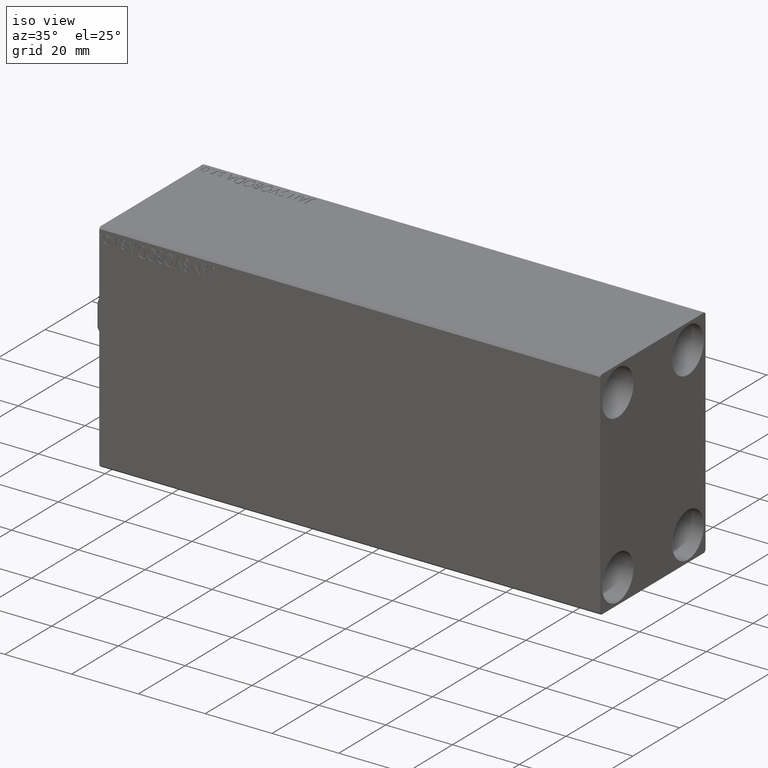
[diagram: clean part render]
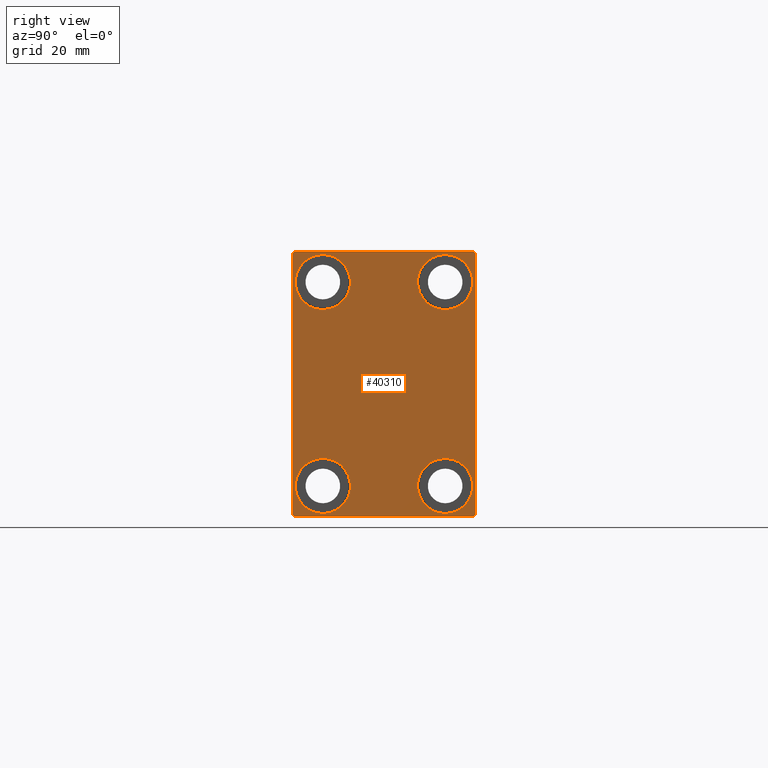
[diagram: tour spotlight — one face highlighted and labeled with its STEP entity id]
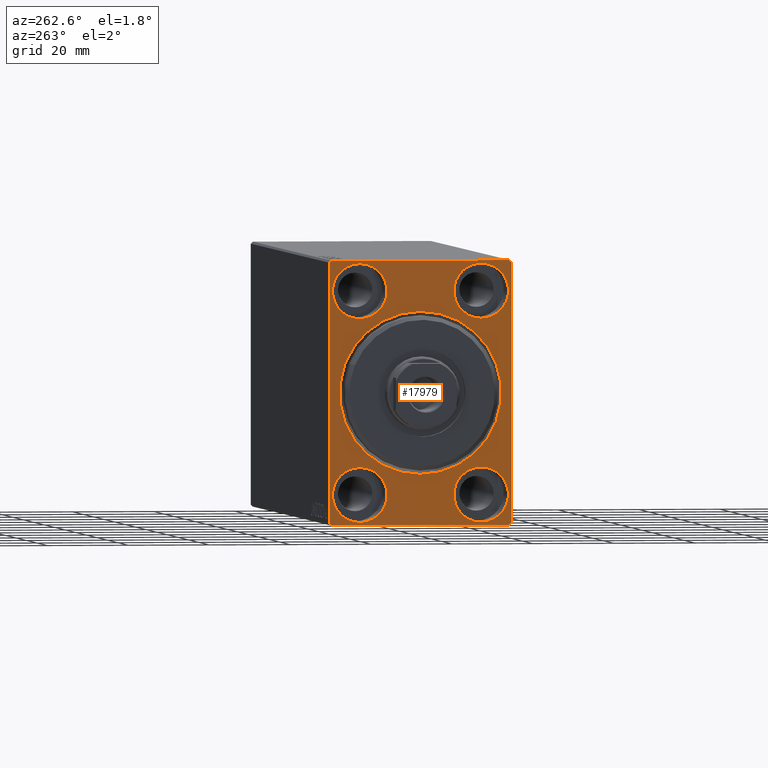
[diagram: tour spotlight — one face highlighted and labeled with its STEP entity id]
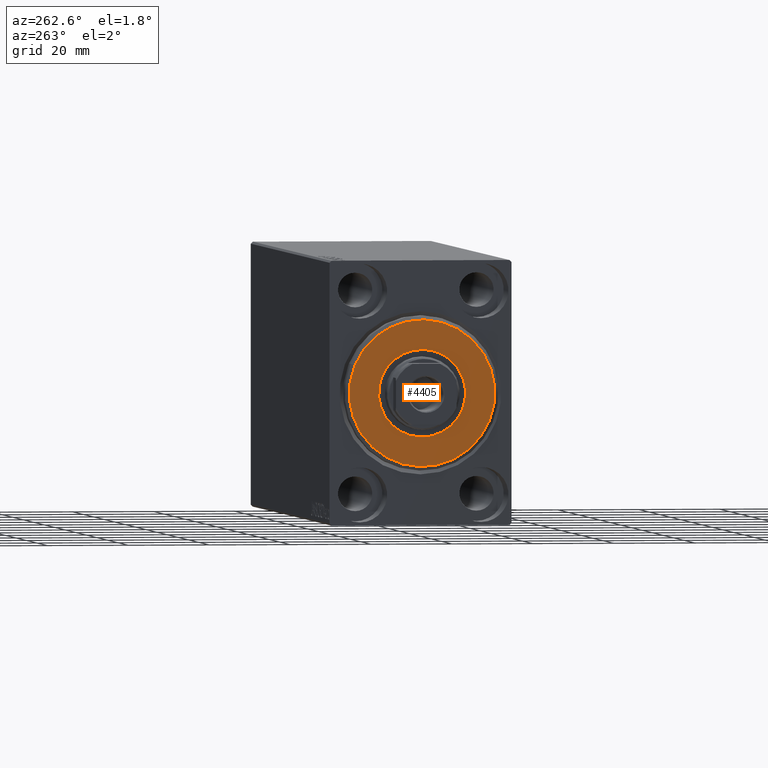
[diagram: tour spotlight — one face highlighted and labeled with its STEP entity id]
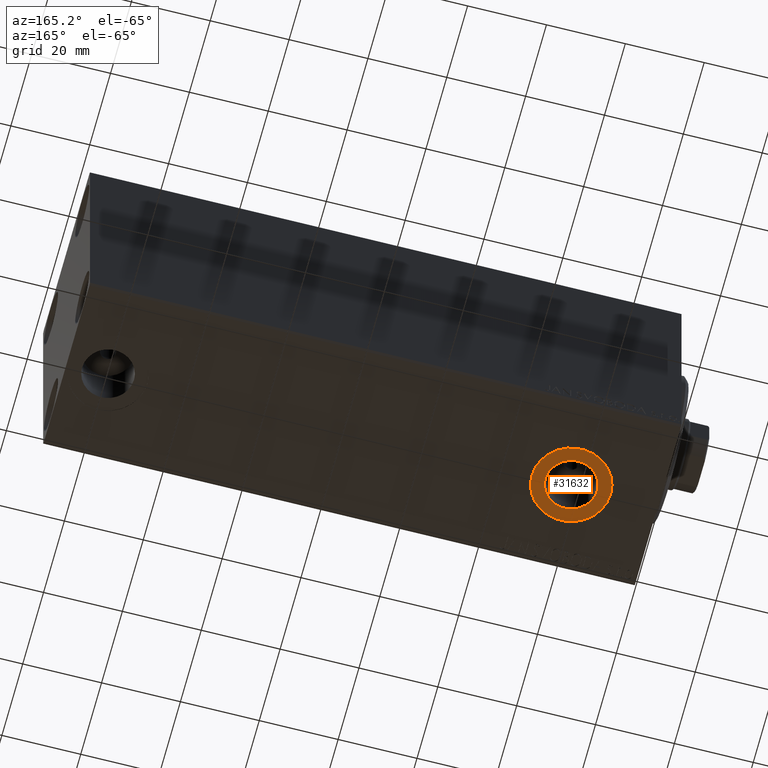
[diagram: tour spotlight — one face highlighted and labeled with its STEP entity id]
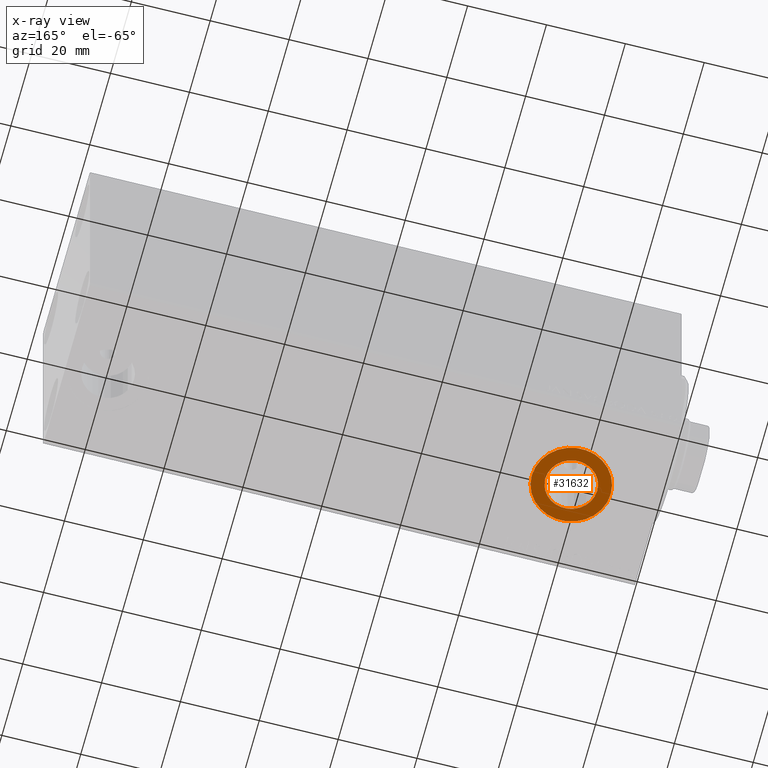
[diagram: x-ray of the same camera — body ghosted, this tour face saturated]
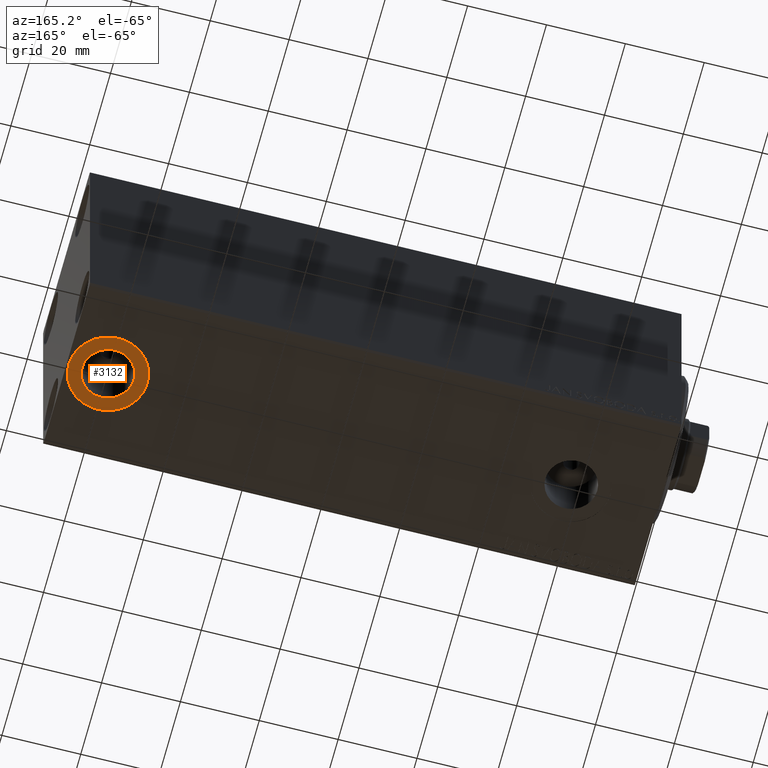
[diagram: tour spotlight — one face highlighted and labeled with its STEP entity id]
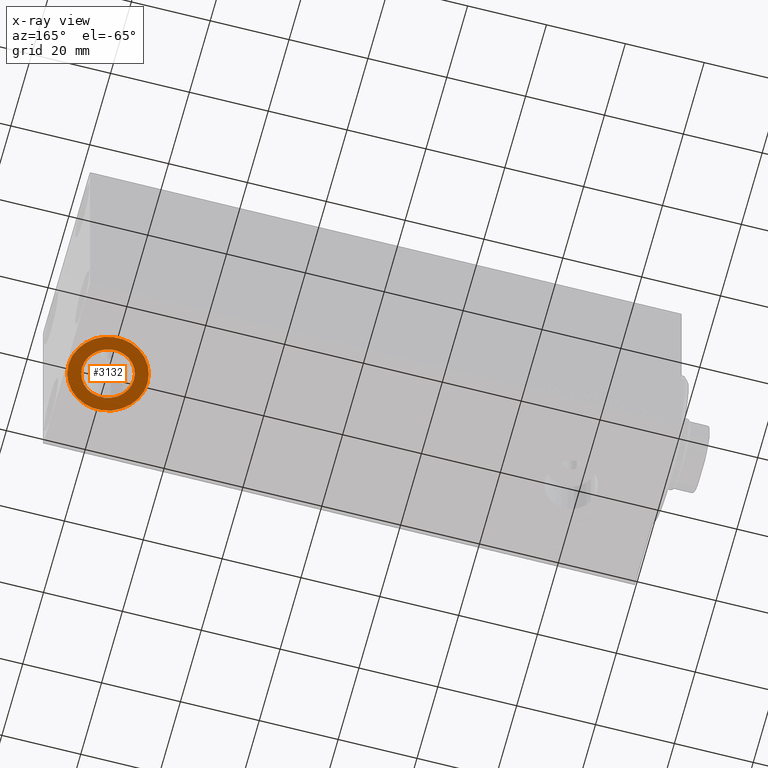
[diagram: x-ray of the same camera — body ghosted, this tour face saturated]
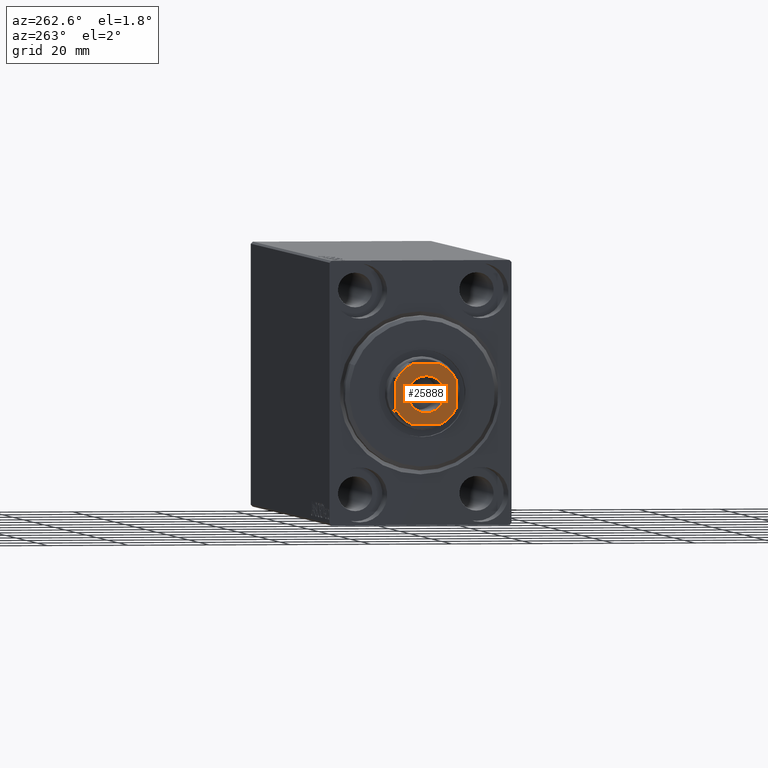
[diagram: tour spotlight — one face highlighted and labeled with its STEP entity id]
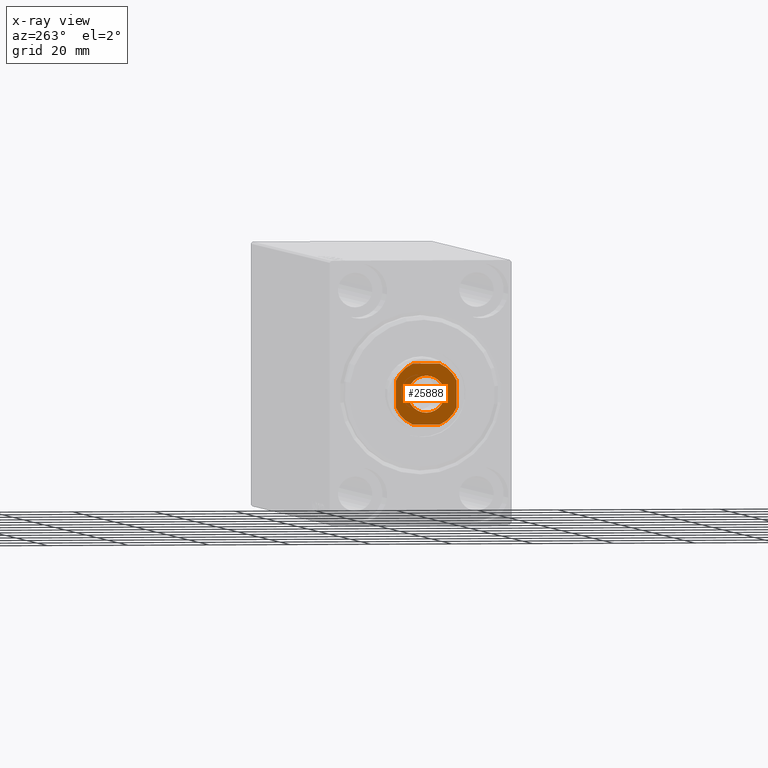
[diagram: x-ray of the same camera — body ghosted, this tour face saturated]
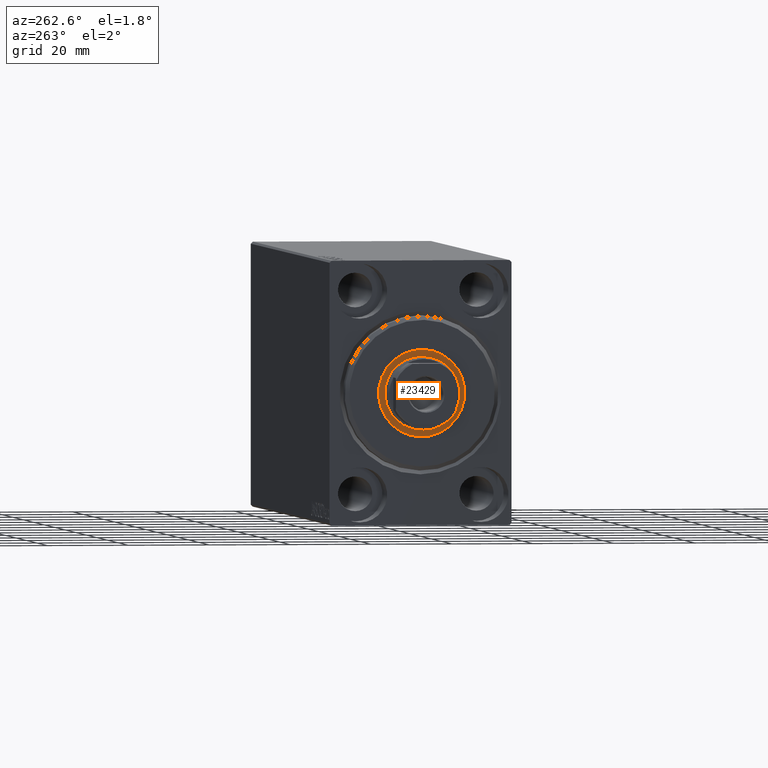
[diagram: tour spotlight — one face highlighted and labeled with its STEP entity id]
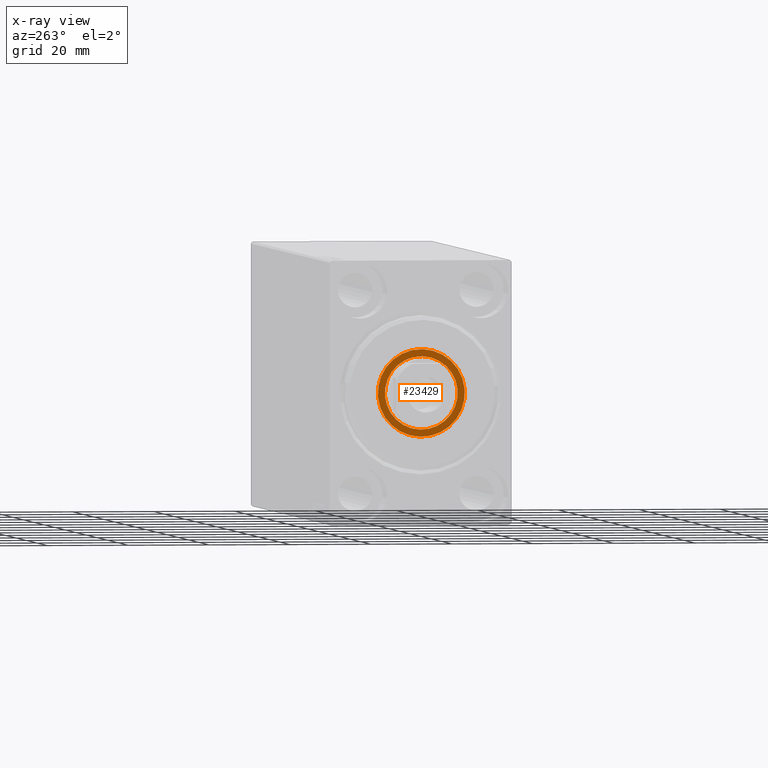
[diagram: x-ray of the same camera — body ghosted, this tour face saturated]
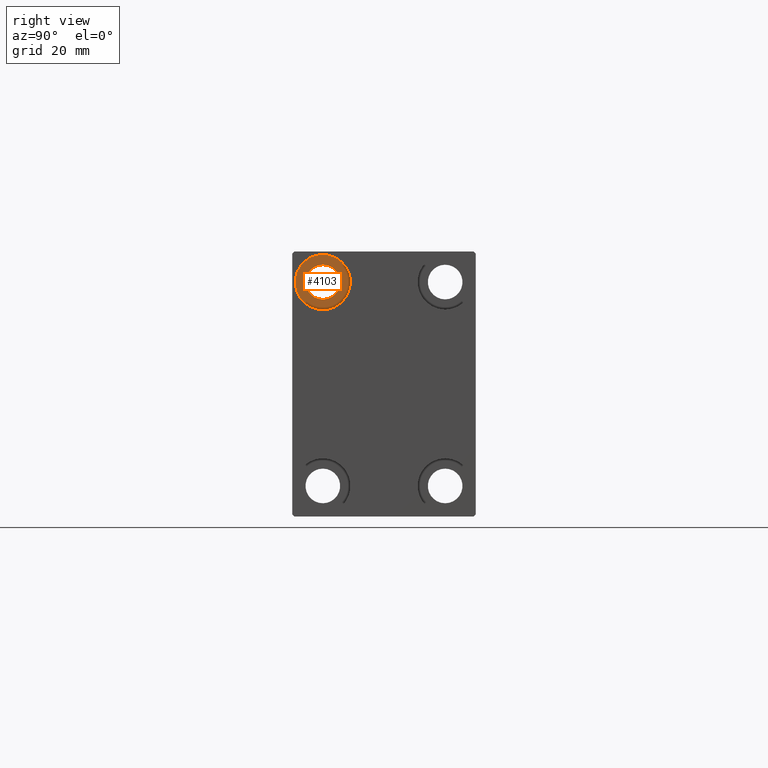
[diagram: tour spotlight — one face highlighted and labeled with its STEP entity id]
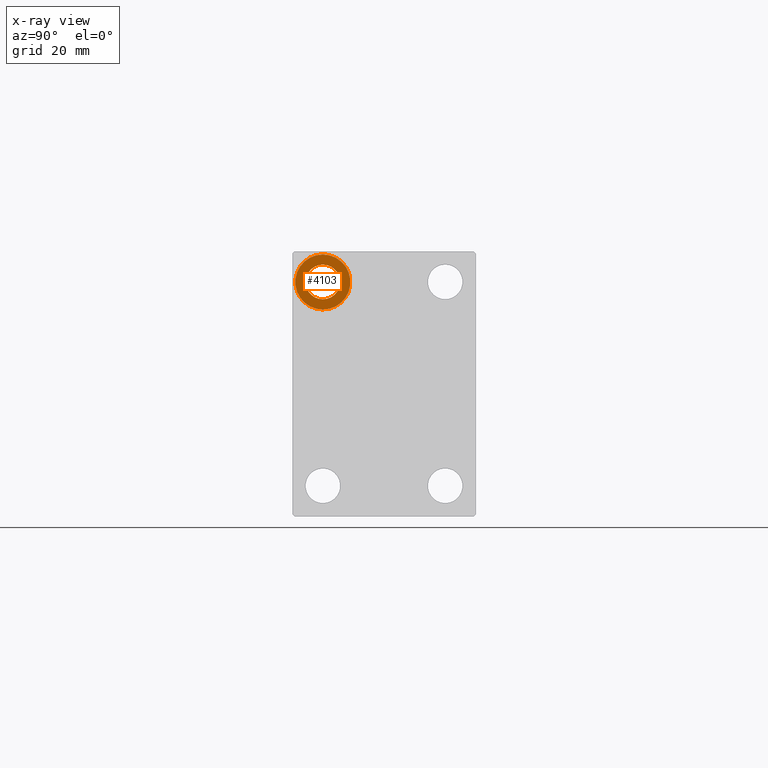
[diagram: x-ray of the same camera — body ghosted, this tour face saturated]
A machine part: a face-by-face anatomy tour. The part has 862 B-rep faces; the first image is the clean iso view, then the 8 largest visible faces are spotlighted one at a time (largest first), each with its STEP entity span.

Face 1 — right view, entity #40310. In plain terms, the highlighted planar face has unit normal (1, 0, 0).
Definition (entity closure, byte-faithful):
#293 = VERTEX_POINT ( 'NONE', #36056 ) ;
#1045 = EDGE_CURVE ( 'NONE', #9355, #40959, #19211, .T. ) ;
#1187 = CIRCLE ( 'NONE', #23859, 6.749999999999999112 ) ;
#1371 = ORIENTED_EDGE ( 'NONE', *, *, #4362, .T. ) ;
#1617 = DIRECTION ( 'NONE',  ( 0.000000000000000000, -1.000000000000000000, -1.541976423090495387E-16 ) ) ;
#2085 = DIRECTION ( 'NONE',  ( -0.000000000000000000, 0.7071067811865376918, -0.7071067811865574537 ) ) ;
#2161 = CARTESIAN_POINT ( 'NONE',  ( 150.0000000000000000, 22.49999999999999289, 32.00000000000002132 ) ) ;
#2453 = VERTEX_POINT ( 'NONE', #25319 ) ;
#2510 = AXIS2_PLACEMENT_3D ( 'NONE', #8388, #18620, #21956 ) ;
#2945 = DIRECTION ( 'NONE',  ( 0.000000000000000000, 0.000000000000000000, 1.000000000000000000 ) ) ;
#3034 = DIRECTION ( 'NONE',  ( 0.000000000000000000, 0.000000000000000000, 1.000000000000000000 ) ) ;
#3081 = VECTOR ( 'NONE', #2085, 999.9999999999998863 ) ;
#3657 = DIRECTION ( 'NONE',  ( 0.000000000000000000, 0.000000000000000000, 1.000000000000000000 ) ) ;
#3747 = CARTESIAN_POINT ( 'NONE',  ( 150.0000000000000000, 0.000000000000000000, 0.000000000000000000 ) ) ;
#4313 = ORIENTED_EDGE ( 'NONE', *, *, #26694, .T. ) ;
#4321 = EDGE_CURVE ( 'NONE', #38349, #38137, #32733, .T. ) ;
#4362 = EDGE_CURVE ( 'NONE', #42955, #2453, #21533, .T. ) ;
#4949 = CARTESIAN_POINT ( 'NONE',  ( 150.0000000000000000, -14.99999999999999645, 25.00000000000000000 ) ) ;
#5078 = LINE ( 'NONE', #18642, #37544 ) ;
#5502 = CARTESIAN_POINT ( 'NONE',  ( 150.0000000000000000, 14.99999999999999645, -18.25000000000000355 ) ) ;
#6895 = CARTESIAN_POINT ( 'NONE',  ( 150.0000000000000000, 22.00000000000000711, 32.50000000000000000 ) ) ;
#7793 = AXIS2_PLACEMENT_3D ( 'NONE', #22195, #43114, #3034 ) ;
#8388 = CARTESIAN_POINT ( 'NONE',  ( 150.0000000000000000, -15.00000000000000355, -25.00000000000000000 ) ) ;
#8403 = VERTEX_POINT ( 'NONE', #38824 ) ;
#8572 = LINE ( 'NONE', #39056, #26292 ) ;
#8676 = EDGE_CURVE ( 'NONE', #42732, #18590, #9563, .T. ) ;
#9073 = VERTEX_POINT ( 'NONE', #11135 ) ;
#9355 = VERTEX_POINT ( 'NONE', #33014 ) ;
#9563 = CIRCLE ( 'NONE', #42949, 6.749999999999999112 ) ;
#9693 = LINE ( 'NONE', #22823, #35212 ) ;
#9985 = EDGE_LOOP ( 'NONE', ( #16497, #18038 ) ) ;
#10207 = FACE_OUTER_BOUND ( 'NONE', #35002, .T. ) ;
#10346 = CARTESIAN_POINT ( 'NONE',  ( 150.0000000000000000, 15.00000000000000355, 25.00000000000000000 ) ) ;
#10348 = CARTESIAN_POINT ( 'NONE',  ( 150.0000000000000000, 27.24999999999985079, 27.25000000000023093 ) ) ;
#10373 = EDGE_CURVE ( 'NONE', #31762, #8403, #23793, .T. ) ;
#10485 = AXIS2_PLACEMENT_3D ( 'NONE', #26518, #36766, #2945 ) ;
#10848 = LINE ( 'NONE', #33986, #19111 ) ;
#10869 = FACE_BOUND ( 'NONE', #12303, .T. ) ;
#10975 = EDGE_LOOP ( 'NONE', ( #37899, #28093 ) ) ;
#11135 = CARTESIAN_POINT ( 'NONE',  ( 150.0000000000000000, -22.50000000000000711, 31.99999999999999289 ) ) ;
#11314 = ORIENTED_EDGE ( 'NONE', *, *, #36144, .T. ) ;
#11386 = AXIS2_PLACEMENT_3D ( 'NONE', #3747, #24203, #37795 ) ;
#12303 = EDGE_LOOP ( 'NONE', ( #4313, #1371 ) ) ;
#12743 = CARTESIAN_POINT ( 'NONE',  ( 150.0000000000000000, -21.99999999999999289, -32.50000000000000711 ) ) ;
#12797 = EDGE_CURVE ( 'NONE', #29416, #24914, #1187, .T. ) ;
#13284 = CARTESIAN_POINT ( 'NONE',  ( 150.0000000000000000, 14.99999999999999645, -25.00000000000000000 ) ) ;
#13665 = CARTESIAN_POINT ( 'NONE',  ( 150.0000000000000000, -14.99999999999999645, 25.00000000000000000 ) ) ;
#13761 = PLANE ( 'NONE',  #11386 ) ;
#13799 = CARTESIAN_POINT ( 'NONE',  ( 150.0000000000000000, -14.99999999999999645, 31.75000000000000000 ) ) ;
#14229 = ORIENTED_EDGE ( 'NONE', *, *, #32566, .T. ) ;
#14641 = LINE ( 'NONE', #38241, #24066 ) ;
#14965 = CIRCLE ( 'NONE', #17107, 6.749999999999999112 ) ;
#15292 = DIRECTION ( 'NONE',  ( 0.000000000000000000, 1.000000000000000000, 0.000000000000000000 ) ) ;
#15444 = ORIENTED_EDGE ( 'NONE', *, *, #17053, .T. ) ;
#16497 = ORIENTED_EDGE ( 'NONE', *, *, #12797, .T. ) ;
#17053 = EDGE_CURVE ( 'NONE', #293, #42676, #10848, .T. ) ;
#17107 = AXIS2_PLACEMENT_3D ( 'NONE', #10346, #18347, #43209 ) ;
#17784 = EDGE_CURVE ( 'NONE', #38137, #9073, #14641, .T. ) ;
#18038 = ORIENTED_EDGE ( 'NONE', *, *, #30361, .T. ) ;
#18347 = DIRECTION ( 'NONE',  ( -1.000000000000000000, -0.000000000000000000, -0.000000000000000000 ) ) ;
#18590 = VERTEX_POINT ( 'NONE', #25316 ) ;
#18620 = DIRECTION ( 'NONE',  ( -1.000000000000000000, -0.000000000000000000, -0.000000000000000000 ) ) ;
#18642 = CARTESIAN_POINT ( 'NONE',  ( 150.0000000000000000, -22.50000000000000711, -32.50000000000000711 ) ) ;
#19111 = VECTOR ( 'NONE', #37777, 1000.000000000000000 ) ;
#19211 = LINE ( 'NONE', #29866, #3081 ) ;
#19359 = EDGE_LOOP ( 'NONE', ( #21585, #28005 ) ) ;
#20351 = CIRCLE ( 'NONE', #28902, 6.749999999999999112 ) ;
#21320 = DIRECTION ( 'NONE',  ( 0.000000000000000000, -0.7071067811865474617, -0.7071067811865474617 ) ) ;
#21533 = CIRCLE ( 'NONE', #39301, 6.749999999999999112 ) ;
#21585 = ORIENTED_EDGE ( 'NONE', *, *, #42794, .T. ) ;
#21858 = DIRECTION ( 'NONE',  ( 0.000000000000000000, 0.000000000000000000, 1.000000000000000000 ) ) ;
#21900 = CARTESIAN_POINT ( 'NONE',  ( 150.0000000000000000, -21.99999999999999289, 32.49999999999999289 ) ) ;
#21956 = DIRECTION ( 'NONE',  ( 0.000000000000000000, 0.000000000000000000, 1.000000000000000000 ) ) ;
#22146 = DIRECTION ( 'NONE',  ( 0.000000000000000000, 0.000000000000000000, -1.000000000000000000 ) ) ;
#22195 = CARTESIAN_POINT ( 'NONE',  ( 150.0000000000000000, -15.00000000000000355, -25.00000000000000000 ) ) ;
#22823 = CARTESIAN_POINT ( 'NONE',  ( 150.0000000000000000, 27.25000000000000355, -27.25000000000000355 ) ) ;
#22905 = EDGE_CURVE ( 'NONE', #43624, #293, #9693, .T. ) ;
#23283 = CIRCLE ( 'NONE', #10485, 6.749999999999999112 ) ;
#23294 = DIRECTION ( 'NONE',  ( -1.000000000000000000, -0.000000000000000000, -0.000000000000000000 ) ) ;
#23506 = DIRECTION ( 'NONE',  ( 0.000000000000000000, 0.000000000000000000, 1.000000000000000000 ) ) ;
#23793 = CIRCLE ( 'NONE', #2510, 6.749999999999999112 ) ;
#23859 = AXIS2_PLACEMENT_3D ( 'NONE', #13284, #23294, #23506 ) ;
#24066 = VECTOR ( 'NONE', #21320, 1000.000000000000114 ) ;
#24203 = DIRECTION ( 'NONE',  ( 1.000000000000000000, 0.000000000000000000, 0.000000000000000000 ) ) ;
#24355 = CARTESIAN_POINT ( 'NONE',  ( 150.0000000000000000, 21.99999999999998579, -32.50000000000000711 ) ) ;
#24914 = VERTEX_POINT ( 'NONE', #5502 ) ;
#25316 = CARTESIAN_POINT ( 'NONE',  ( 150.0000000000000000, 15.00000000000000355, 18.25000000000000355 ) ) ;
#25319 = CARTESIAN_POINT ( 'NONE',  ( 150.0000000000000000, -14.99999999999999645, 18.25000000000000355 ) ) ;
#26292 = VECTOR ( 'NONE', #22146, 1000.000000000000000 ) ;
#26518 = CARTESIAN_POINT ( 'NONE',  ( 150.0000000000000000, 14.99999999999999645, -25.00000000000000000 ) ) ;
#26694 = EDGE_CURVE ( 'NONE', #2453, #42955, #20351, .T. ) ;
#26810 = DIRECTION ( 'NONE',  ( -0.000000000000000000, -0.7071067811865525687, 0.7071067811865425767 ) ) ;
#26949 = CIRCLE ( 'NONE', #7793, 6.749999999999999112 ) ;
#28005 = ORIENTED_EDGE ( 'NONE', *, *, #8676, .T. ) ;
#28093 = ORIENTED_EDGE ( 'NONE', *, *, #10373, .T. ) ;
#28902 = AXIS2_PLACEMENT_3D ( 'NONE', #13665, #38151, #3657 ) ;
#29389 = DIRECTION ( 'NONE',  ( -1.000000000000000000, -0.000000000000000000, -0.000000000000000000 ) ) ;
#29416 = VERTEX_POINT ( 'NONE', #37860 ) ;
#29866 = CARTESIAN_POINT ( 'NONE',  ( 150.0000000000000000, -27.25000000000030553, -27.24999999999954881 ) ) ;
#30098 = CARTESIAN_POINT ( 'NONE',  ( 150.0000000000000000, 15.00000000000000355, 25.00000000000000000 ) ) ;
#30361 = EDGE_CURVE ( 'NONE', #24914, #29416, #23283, .T. ) ;
#30749 = DIRECTION ( 'NONE',  ( -1.000000000000000000, -0.000000000000000000, -0.000000000000000000 ) ) ;
#30753 = VECTOR ( 'NONE', #1617, 1000.000000000000000 ) ;
#31102 = FACE_BOUND ( 'NONE', #19359, .T. ) ;
#31762 = VERTEX_POINT ( 'NONE', #42225 ) ;
#32304 = ORIENTED_EDGE ( 'NONE', *, *, #22905, .T. ) ;
#32566 = EDGE_CURVE ( 'NONE', #40959, #43624, #5078, .T. ) ;
#32644 = ORIENTED_EDGE ( 'NONE', *, *, #33644, .T. ) ;
#32733 = LINE ( 'NONE', #42112, #30753 ) ;
#32829 = DIRECTION ( 'NONE',  ( -0.000000000000000000, 0.7071067811865474617, 0.7071067811865474617 ) ) ;
#33014 = CARTESIAN_POINT ( 'NONE',  ( 150.0000000000000000, -22.50000000000000711, -31.99999999999997868 ) ) ;
#33644 = EDGE_CURVE ( 'NONE', #42676, #38349, #36842, .T. ) ;
#33665 = DIRECTION ( 'NONE',  ( 0.000000000000000000, 0.000000000000000000, 1.000000000000000000 ) ) ;
#33791 = FACE_BOUND ( 'NONE', #10975, .T. ) ;
#33986 = CARTESIAN_POINT ( 'NONE',  ( 150.0000000000000000, 22.50000000000000000, -32.50000000000000711 ) ) ;
#35002 = EDGE_LOOP ( 'NONE', ( #40529, #39832, #11314, #41198, #14229, #32304, #15444, #32644 ) ) ;
#35212 = VECTOR ( 'NONE', #32829, 1000.000000000000114 ) ;
#35888 = EDGE_CURVE ( 'NONE', #8403, #31762, #26949, .T. ) ;
#36056 = CARTESIAN_POINT ( 'NONE',  ( 150.0000000000000000, 22.50000000000000000, -32.00000000000000711 ) ) ;
#36144 = EDGE_CURVE ( 'NONE', #9073, #9355, #8572, .T. ) ;
#36766 = DIRECTION ( 'NONE',  ( -1.000000000000000000, -0.000000000000000000, -0.000000000000000000 ) ) ;
#36842 = LINE ( 'NONE', #10348, #42572 ) ;
#37544 = VECTOR ( 'NONE', #15292, 1000.000000000000000 ) ;
#37777 = DIRECTION ( 'NONE',  ( 0.000000000000000000, -1.067522139062650425E-16, 1.000000000000000000 ) ) ;
#37795 = DIRECTION ( 'NONE',  ( 0.000000000000000000, 0.000000000000000000, -1.000000000000000000 ) ) ;
#37860 = CARTESIAN_POINT ( 'NONE',  ( 150.0000000000000000, 14.99999999999999645, -31.75000000000000000 ) ) ;
#37899 = ORIENTED_EDGE ( 'NONE', *, *, #35888, .T. ) ;
#38137 = VERTEX_POINT ( 'NONE', #21900 ) ;
#38151 = DIRECTION ( 'NONE',  ( -1.000000000000000000, -0.000000000000000000, -0.000000000000000000 ) ) ;
#38241 = CARTESIAN_POINT ( 'NONE',  ( 150.0000000000000000, -27.25000000000000000, 27.25000000000000000 ) ) ;
#38349 = VERTEX_POINT ( 'NONE', #6895 ) ;
#38824 = CARTESIAN_POINT ( 'NONE',  ( 150.0000000000000000, -15.00000000000000355, -31.75000000000000000 ) ) ;
#39056 = CARTESIAN_POINT ( 'NONE',  ( 150.0000000000000000, -22.50000000000000711, 32.49999999999999289 ) ) ;
#39301 = AXIS2_PLACEMENT_3D ( 'NONE', #4949, #29389, #21858 ) ;
#39832 = ORIENTED_EDGE ( 'NONE', *, *, #17784, .T. ) ;
#40310 = ADVANCED_FACE ( 'NONE', ( #41353, #10869, #31102, #33791, #10207 ), #13761, .T. ) ;
#40529 = ORIENTED_EDGE ( 'NONE', *, *, #4321, .T. ) ;
#40959 = VERTEX_POINT ( 'NONE', #12743 ) ;
#41198 = ORIENTED_EDGE ( 'NONE', *, *, #1045, .T. ) ;
#41353 = FACE_BOUND ( 'NONE', #9985, .T. ) ;
#42112 = CARTESIAN_POINT ( 'NONE',  ( 150.0000000000000000, 22.49999999999999289, 32.50000000000000000 ) ) ;
#42225 = CARTESIAN_POINT ( 'NONE',  ( 150.0000000000000000, -15.00000000000000355, -18.25000000000000355 ) ) ;
#42572 = VECTOR ( 'NONE', #26810, 999.9999999999998863 ) ;
#42676 = VERTEX_POINT ( 'NONE', #2161 ) ;
#42732 = VERTEX_POINT ( 'NONE', #43100 ) ;
#42794 = EDGE_CURVE ( 'NONE', #18590, #42732, #14965, .T. ) ;
#42949 = AXIS2_PLACEMENT_3D ( 'NONE', #30098, #30749, #33665 ) ;
#42955 = VERTEX_POINT ( 'NONE', #13799 ) ;
#43100 = CARTESIAN_POINT ( 'NONE',  ( 150.0000000000000000, 15.00000000000000355, 31.75000000000000000 ) ) ;
#43114 = DIRECTION ( 'NONE',  ( -1.000000000000000000, -0.000000000000000000, -0.000000000000000000 ) ) ;
#43209 = DIRECTION ( 'NONE',  ( 0.000000000000000000, 0.000000000000000000, 1.000000000000000000 ) ) ;
#43624 = VERTEX_POINT ( 'NONE', #24355 ) ;

Face 2 — auxiliary view, entity #17979. In plain terms, the highlighted planar face has unit normal (1, 0, 0).
Definition (entity closure, byte-faithful):
#223 = LINE ( 'NONE', #7783, #8162 ) ;
#377 = LINE ( 'NONE', #13948, #12116 ) ;
#666 = VERTEX_POINT ( 'NONE', #41092 ) ;
#964 = VERTEX_POINT ( 'NONE', #15199 ) ;
#1083 = CARTESIAN_POINT ( 'NONE',  ( 0.000000000000000000, -15.00000000000000355, -25.00000000000000000 ) ) ;
#2095 = EDGE_CURVE ( 'NONE', #666, #20277, #30692, .T. ) ;
#2147 = AXIS2_PLACEMENT_3D ( 'NONE', #43777, #33969, #20396 ) ;
#2715 = VERTEX_POINT ( 'NONE', #27940 ) ;
#3544 = DIRECTION ( 'NONE',  ( 0.000000000000000000, 0.000000000000000000, 1.000000000000000000 ) ) ;
#3690 = DIRECTION ( 'NONE',  ( 0.000000000000000000, 0.000000000000000000, -1.000000000000000000 ) ) ;
#4118 = CARTESIAN_POINT ( 'NONE',  ( 0.000000000000000000, 22.00000000000000711, 32.50000000000000000 ) ) ;
#4198 = VERTEX_POINT ( 'NONE', #17630 ) ;
#4311 = ORIENTED_EDGE ( 'NONE', *, *, #28924, .F. ) ;
#5516 = AXIS2_PLACEMENT_3D ( 'NONE', #30395, #17709, #13496 ) ;
#5723 = EDGE_LOOP ( 'NONE', ( #12344, #13071 ) ) ;
#5817 = CARTESIAN_POINT ( 'NONE',  ( 0.000000000000000000, 14.99999999999999645, -25.00000000000000000 ) ) ;
#5949 = ORIENTED_EDGE ( 'NONE', *, *, #10123, .F. ) ;
#6303 = CIRCLE ( 'NONE', #29031, 6.749999999999999112 ) ;
#6594 = FACE_OUTER_BOUND ( 'NONE', #25900, .T. ) ;
#6653 = LINE ( 'NONE', #9996, #34075 ) ;
#6751 = VERTEX_POINT ( 'NONE', #8192 ) ;
#6891 = CARTESIAN_POINT ( 'NONE',  ( 0.000000000000000000, -14.99999999999999645, 25.00000000000000000 ) ) ;
#7587 = VERTEX_POINT ( 'NONE', #17451 ) ;
#7783 = CARTESIAN_POINT ( 'NONE',  ( 0.000000000000000000, 22.50000000000000000, -32.50000000000000711 ) ) ;
#8162 = VECTOR ( 'NONE', #24233, 1000.000000000000000 ) ;
#8192 = CARTESIAN_POINT ( 'NONE',  ( 0.000000000000000000, 21.99999999999998579, -32.50000000000000711 ) ) ;
#8251 = ORIENTED_EDGE ( 'NONE', *, *, #40236, .T. ) ;
#8523 = CIRCLE ( 'NONE', #2147, 6.749999999999999112 ) ;
#8691 = EDGE_CURVE ( 'NONE', #2715, #6751, #20302, .T. ) ;
#9299 = VERTEX_POINT ( 'NONE', #11907 ) ;
#9507 = CARTESIAN_POINT ( 'NONE',  ( 0.000000000000000000, 22.50000000000000000, -32.00000000000000711 ) ) ;
#9933 = EDGE_CURVE ( 'NONE', #42551, #9299, #223, .T. ) ;
#9996 = CARTESIAN_POINT ( 'NONE',  ( 0.000000000000000000, -21.99999999999999289, -32.50000000000000711 ) ) ;
#10123 = EDGE_CURVE ( 'NONE', #7587, #34433, #19542, .T. ) ;
#10191 = CARTESIAN_POINT ( 'NONE',  ( 0.000000000000000000, 14.99999999999999645, -31.75000000000000000 ) ) ;
#10359 = EDGE_LOOP ( 'NONE', ( #39006, #4311 ) ) ;
#10363 = FACE_BOUND ( 'NONE', #18517, .T. ) ;
#10541 = CARTESIAN_POINT ( 'NONE',  ( 0.000000000000000000, 22.49999999999999289, 32.50000000000000000 ) ) ;
#10586 = EDGE_CURVE ( 'NONE', #30541, #9299, #37717, .T. ) ;
#10597 = DIRECTION ( 'NONE',  ( -1.000000000000000000, 0.000000000000000000, 0.000000000000000000 ) ) ;
#10607 = DIRECTION ( 'NONE',  ( -0.000000000000000000, 0.7071067811865474617, 0.7071067811865474617 ) ) ;
#10639 = CIRCLE ( 'NONE', #38384, 6.749999999999999112 ) ;
#10717 = DIRECTION ( 'NONE',  ( 0.000000000000000000, 0.000000000000000000, 1.000000000000000000 ) ) ;
#11130 = CIRCLE ( 'NONE', #26735, 6.749999999999999112 ) ;
#11474 = ORIENTED_EDGE ( 'NONE', *, *, #36992, .F. ) ;
#11692 = VECTOR ( 'NONE', #40782, 1000.000000000000000 ) ;
#11907 = CARTESIAN_POINT ( 'NONE',  ( 0.000000000000000000, 22.49999999999999289, 32.00000000000002132 ) ) ;
#12116 = VECTOR ( 'NONE', #10607, 1000.000000000000114 ) ;
#12344 = ORIENTED_EDGE ( 'NONE', *, *, #26042, .F. ) ;
#12499 = AXIS2_PLACEMENT_3D ( 'NONE', #26651, #30429, #43583 ) ;
#12740 = DIRECTION ( 'NONE',  ( 1.000000000000000000, 0.000000000000000000, 0.000000000000000000 ) ) ;
#13061 = DIRECTION ( 'NONE',  ( 0.000000000000000000, -0.7071067811865474617, -0.7071067811865474617 ) ) ;
#13071 = ORIENTED_EDGE ( 'NONE', *, *, #37495, .F. ) ;
#13088 = DIRECTION ( 'NONE',  ( 0.000000000000000000, 0.000000000000000000, -1.000000000000000000 ) ) ;
#13343 = DIRECTION ( 'NONE',  ( -1.000000000000000000, 0.000000000000000000, 0.000000000000000000 ) ) ;
#13357 = CIRCLE ( 'NONE', #33963, 6.749999999999999112 ) ;
#13496 = DIRECTION ( 'NONE',  ( 0.000000000000000000, 0.000000000000000000, 1.000000000000000000 ) ) ;
#13543 = ORIENTED_EDGE ( 'NONE', *, *, #18720, .F. ) ;
#13948 = CARTESIAN_POINT ( 'NONE',  ( 0.000000000000000000, -22.50000000000000711, 31.99999999999999289 ) ) ;
#14427 = DIRECTION ( 'NONE',  ( -1.000000000000000000, 0.000000000000000000, 0.000000000000000000 ) ) ;
#15090 = AXIS2_PLACEMENT_3D ( 'NONE', #41200, #31170, #10717 ) ;
#15199 = CARTESIAN_POINT ( 'NONE',  ( 0.000000000000000000, -15.00000000000000355, -31.75000000000000000 ) ) ;
#15742 = EDGE_LOOP ( 'NONE', ( #16864, #11474 ) ) ;
#16023 = VECTOR ( 'NONE', #24101, 1000.000000000000000 ) ;
#16233 = VERTEX_POINT ( 'NONE', #32832 ) ;
#16817 = PLANE ( 'NONE',  #39021 ) ;
#16845 = EDGE_CURVE ( 'NONE', #21935, #42383, #6303, .T. ) ;
#16849 = CARTESIAN_POINT ( 'NONE',  ( 0.000000000000000000, -22.50000000000000711, 32.49999999999999289 ) ) ;
#16864 = ORIENTED_EDGE ( 'NONE', *, *, #40336, .F. ) ;
#17451 = CARTESIAN_POINT ( 'NONE',  ( 0.000000000000000000, -22.50000000000000711, 31.99999999999999289 ) ) ;
#17630 = CARTESIAN_POINT ( 'NONE',  ( 0.000000000000000000, 2.449293598294705330E-15, -19.99999999999998934 ) ) ;
#17709 = DIRECTION ( 'NONE',  ( -1.000000000000000000, 0.000000000000000000, 0.000000000000000000 ) ) ;
#17979 = ADVANCED_FACE ( 'NONE', ( #10363, #23929, #23708, #37069, #24145, #6594 ), #16817, .F. ) ;
#18303 = CARTESIAN_POINT ( 'NONE',  ( 0.000000000000000000, 14.99999999999999645, -18.25000000000000355 ) ) ;
#18517 = EDGE_LOOP ( 'NONE', ( #39169, #33075 ) ) ;
#18720 = EDGE_CURVE ( 'NONE', #20277, #666, #13357, .T. ) ;
#18972 = EDGE_CURVE ( 'NONE', #30541, #18990, #23883, .T. ) ;
#18990 = VERTEX_POINT ( 'NONE', #37916 ) ;
#19388 = DIRECTION ( 'NONE',  ( -1.000000000000000000, 0.000000000000000000, 0.000000000000000000 ) ) ;
#19542 = LINE ( 'NONE', #16849, #30883 ) ;
#20277 = VERTEX_POINT ( 'NONE', #38655 ) ;
#20302 = LINE ( 'NONE', #43685, #11692 ) ;
#20376 = CARTESIAN_POINT ( 'NONE',  ( 0.000000000000000000, 0.000000000000000000, 0.000000000000000000 ) ) ;
#20396 = DIRECTION ( 'NONE',  ( 0.000000000000000000, 0.000000000000000000, 1.000000000000000000 ) ) ;
#20457 = DIRECTION ( 'NONE',  ( -1.000000000000000000, 0.000000000000000000, 0.000000000000000000 ) ) ;
#20640 = CIRCLE ( 'NONE', #24160, 6.749999999999999112 ) ;
#20983 = VECTOR ( 'NONE', #23904, 999.9999999999998863 ) ;
#21633 = CARTESIAN_POINT ( 'NONE',  ( 0.000000000000000000, -22.50000000000000711, -31.99999999999997868 ) ) ;
#21935 = VERTEX_POINT ( 'NONE', #18303 ) ;
#22628 = EDGE_CURVE ( 'NONE', #42551, #6751, #39773, .T. ) ;
#23708 = FACE_BOUND ( 'NONE', #5723, .T. ) ;
#23883 = LINE ( 'NONE', #10541, #16023 ) ;
#23904 = DIRECTION ( 'NONE',  ( -0.000000000000000000, 0.7071067811865525687, -0.7071067811865425767 ) ) ;
#23929 = FACE_BOUND ( 'NONE', #10359, .T. ) ;
#24101 = DIRECTION ( 'NONE',  ( 0.000000000000000000, -1.000000000000000000, -1.541976423090495387E-16 ) ) ;
#24145 = FACE_BOUND ( 'NONE', #15742, .T. ) ;
#24160 = AXIS2_PLACEMENT_3D ( 'NONE', #6891, #20457, #31126 ) ;
#24233 = DIRECTION ( 'NONE',  ( 0.000000000000000000, -1.067522139062650425E-16, 1.000000000000000000 ) ) ;
#24702 = EDGE_CURVE ( 'NONE', #4198, #16233, #34534, .T. ) ;
#25900 = EDGE_LOOP ( 'NONE', ( #5949, #35434, #39777, #28648, #40629, #37734, #29072, #8251 ) ) ;
#26042 = EDGE_CURVE ( 'NONE', #35386, #43816, #11130, .T. ) ;
#26293 = DIRECTION ( 'NONE',  ( 0.000000000000000000, 0.000000000000000000, -1.000000000000000000 ) ) ;
#26651 = CARTESIAN_POINT ( 'NONE',  ( 0.000000000000000000, 0.000000000000000000, 0.000000000000000000 ) ) ;
#26735 = AXIS2_PLACEMENT_3D ( 'NONE', #40925, #13343, #3544 ) ;
#26797 = CIRCLE ( 'NONE', #5516, 6.749999999999999112 ) ;
#26914 = AXIS2_PLACEMENT_3D ( 'NONE', #43227, #12740, #26293 ) ;
#27052 = CARTESIAN_POINT ( 'NONE',  ( 0.000000000000000000, 15.00000000000000355, 25.00000000000000000 ) ) ;
#27940 = CARTESIAN_POINT ( 'NONE',  ( 0.000000000000000000, -21.99999999999999289, -32.50000000000000711 ) ) ;
#28648 = ORIENTED_EDGE ( 'NONE', *, *, #10586, .T. ) ;
#28924 = EDGE_CURVE ( 'NONE', #42383, #21935, #26797, .T. ) ;
#29031 = AXIS2_PLACEMENT_3D ( 'NONE', #5817, #19388, #32948 ) ;
#29072 = ORIENTED_EDGE ( 'NONE', *, *, #8691, .F. ) ;
#30395 = CARTESIAN_POINT ( 'NONE',  ( 0.000000000000000000, 14.99999999999999645, -25.00000000000000000 ) ) ;
#30398 = DIRECTION ( 'NONE',  ( 0.000000000000000000, 0.000000000000000000, 1.000000000000000000 ) ) ;
#30429 = DIRECTION ( 'NONE',  ( 1.000000000000000000, 0.000000000000000000, 0.000000000000000000 ) ) ;
#30541 = VERTEX_POINT ( 'NONE', #38537 ) ;
#30692 = CIRCLE ( 'NONE', #15090, 6.749999999999999112 ) ;
#30877 = DIRECTION ( 'NONE',  ( -0.000000000000000000, -0.7071067811865376918, 0.7071067811865574537 ) ) ;
#30883 = VECTOR ( 'NONE', #13088, 1000.000000000000000 ) ;
#31044 = DIRECTION ( 'NONE',  ( 1.000000000000000000, 0.000000000000000000, 0.000000000000000000 ) ) ;
#31126 = DIRECTION ( 'NONE',  ( 0.000000000000000000, 0.000000000000000000, 1.000000000000000000 ) ) ;
#31170 = DIRECTION ( 'NONE',  ( -1.000000000000000000, 0.000000000000000000, 0.000000000000000000 ) ) ;
#31188 = CIRCLE ( 'NONE', #26914, 19.99999999999998934 ) ;
#31761 = EDGE_LOOP ( 'NONE', ( #13543, #35551 ) ) ;
#32204 = DIRECTION ( 'NONE',  ( 0.000000000000000000, 0.000000000000000000, 1.000000000000000000 ) ) ;
#32832 = CARTESIAN_POINT ( 'NONE',  ( 0.000000000000000000, 0.000000000000000000, 19.99999999999998934 ) ) ;
#32948 = DIRECTION ( 'NONE',  ( 0.000000000000000000, 0.000000000000000000, 1.000000000000000000 ) ) ;
#33075 = ORIENTED_EDGE ( 'NONE', *, *, #24702, .T. ) ;
#33126 = EDGE_CURVE ( 'NONE', #16233, #4198, #31188, .T. ) ;
#33963 = AXIS2_PLACEMENT_3D ( 'NONE', #27052, #10597, #30398 ) ;
#33969 = DIRECTION ( 'NONE',  ( -1.000000000000000000, 0.000000000000000000, 0.000000000000000000 ) ) ;
#34075 = VECTOR ( 'NONE', #30877, 999.9999999999998863 ) ;
#34433 = VERTEX_POINT ( 'NONE', #21633 ) ;
#34534 = CIRCLE ( 'NONE', #12499, 19.99999999999998934 ) ;
#35123 = VERTEX_POINT ( 'NONE', #37498 ) ;
#35386 = VERTEX_POINT ( 'NONE', #41622 ) ;
#35434 = ORIENTED_EDGE ( 'NONE', *, *, #37087, .T. ) ;
#35551 = ORIENTED_EDGE ( 'NONE', *, *, #2095, .F. ) ;
#36992 = EDGE_CURVE ( 'NONE', #964, #35123, #8523, .T. ) ;
#37069 = FACE_BOUND ( 'NONE', #31761, .T. ) ;
#37087 = EDGE_CURVE ( 'NONE', #7587, #18990, #377, .T. ) ;
#37495 = EDGE_CURVE ( 'NONE', #43816, #35386, #20640, .T. ) ;
#37498 = CARTESIAN_POINT ( 'NONE',  ( 0.000000000000000000, -15.00000000000000355, -18.25000000000000355 ) ) ;
#37717 = LINE ( 'NONE', #4118, #20983 ) ;
#37734 = ORIENTED_EDGE ( 'NONE', *, *, #22628, .T. ) ;
#37916 = CARTESIAN_POINT ( 'NONE',  ( 0.000000000000000000, -21.99999999999999289, 32.49999999999999289 ) ) ;
#38384 = AXIS2_PLACEMENT_3D ( 'NONE', #1083, #14427, #32204 ) ;
#38537 = CARTESIAN_POINT ( 'NONE',  ( 0.000000000000000000, 22.00000000000000711, 32.50000000000000000 ) ) ;
#38655 = CARTESIAN_POINT ( 'NONE',  ( 0.000000000000000000, 15.00000000000000355, 31.75000000000000000 ) ) ;
#39006 = ORIENTED_EDGE ( 'NONE', *, *, #16845, .F. ) ;
#39021 = AXIS2_PLACEMENT_3D ( 'NONE', #20376, #31044, #3690 ) ;
#39095 = CARTESIAN_POINT ( 'NONE',  ( 0.000000000000000000, 22.50000000000000000, -32.00000000000000711 ) ) ;
#39169 = ORIENTED_EDGE ( 'NONE', *, *, #33126, .T. ) ;
#39578 = VECTOR ( 'NONE', #13061, 1000.000000000000114 ) ;
#39773 = LINE ( 'NONE', #9507, #39578 ) ;
#39777 = ORIENTED_EDGE ( 'NONE', *, *, #18972, .F. ) ;
#40236 = EDGE_CURVE ( 'NONE', #2715, #34433, #6653, .T. ) ;
#40336 = EDGE_CURVE ( 'NONE', #35123, #964, #10639, .T. ) ;
#40629 = ORIENTED_EDGE ( 'NONE', *, *, #9933, .F. ) ;
#40782 = DIRECTION ( 'NONE',  ( 0.000000000000000000, 1.000000000000000000, 0.000000000000000000 ) ) ;
#40925 = CARTESIAN_POINT ( 'NONE',  ( 0.000000000000000000, -14.99999999999999645, 25.00000000000000000 ) ) ;
#41092 = CARTESIAN_POINT ( 'NONE',  ( 0.000000000000000000, 15.00000000000000355, 18.25000000000000355 ) ) ;
#41200 = CARTESIAN_POINT ( 'NONE',  ( 0.000000000000000000, 15.00000000000000355, 25.00000000000000000 ) ) ;
#41622 = CARTESIAN_POINT ( 'NONE',  ( 0.000000000000000000, -14.99999999999999645, 31.75000000000000000 ) ) ;
#42383 = VERTEX_POINT ( 'NONE', #10191 ) ;
#42551 = VERTEX_POINT ( 'NONE', #39095 ) ;
#43227 = CARTESIAN_POINT ( 'NONE',  ( 0.000000000000000000, 0.000000000000000000, 0.000000000000000000 ) ) ;
#43479 = CARTESIAN_POINT ( 'NONE',  ( 0.000000000000000000, -14.99999999999999645, 18.25000000000000355 ) ) ;
#43583 = DIRECTION ( 'NONE',  ( 0.000000000000000000, 0.000000000000000000, -1.000000000000000000 ) ) ;
#43685 = CARTESIAN_POINT ( 'NONE',  ( 0.000000000000000000, -22.50000000000000711, -32.50000000000000711 ) ) ;
#43777 = CARTESIAN_POINT ( 'NONE',  ( 0.000000000000000000, -15.00000000000000355, -25.00000000000000000 ) ) ;
#43816 = VERTEX_POINT ( 'NONE', #43479 ) ;

Face 3 — auxiliary view, entity #4405. In plain terms, the highlighted planar face has unit normal (-1, 0, 0).
Definition (entity closure, byte-faithful):
#3895 = EDGE_CURVE ( 'NONE', #16800, #43655, #14419, .T. ) ;
#4405 = ADVANCED_FACE ( 'NONE', ( #15386, #5384 ), #15607, .T. ) ;
#4765 = CARTESIAN_POINT ( 'NONE',  ( 3.000000000000000000, 0.000000000000000000, 0.000000000000000000 ) ) ;
#5384 = FACE_BOUND ( 'NONE', #39290, .T. ) ;
#6353 = CARTESIAN_POINT ( 'NONE',  ( 3.000000000000000000, 0.000000000000000000, 17.99999999999999645 ) ) ;
#7327 = ORIENTED_EDGE ( 'NONE', *, *, #19818, .T. ) ;
#9158 = DIRECTION ( 'NONE',  ( 0.000000000000000000, 0.000000000000000000, -1.000000000000000000 ) ) ;
#9577 = DIRECTION ( 'NONE',  ( 0.000000000000000000, 0.000000000000000000, -1.000000000000000000 ) ) ;
#13134 = DIRECTION ( 'NONE',  ( 1.000000000000000000, -0.000000000000000000, 0.000000000000000000 ) ) ;
#14306 = EDGE_CURVE ( 'NONE', #15573, #26559, #25331, .T. ) ;
#14419 = CIRCLE ( 'NONE', #19410, 10.75000000000000000 ) ;
#14580 = CARTESIAN_POINT ( 'NONE',  ( 3.000000000000000000, 1.316495309083404223E-15, -10.75000000000000000 ) ) ;
#15386 = FACE_OUTER_BOUND ( 'NONE', #38266, .T. ) ;
#15573 = VERTEX_POINT ( 'NONE', #6353 ) ;
#15607 = PLANE ( 'NONE',  #18710 ) ;
#15694 = CARTESIAN_POINT ( 'NONE',  ( 3.000000000000000000, 2.265596578422603002E-15, -17.99999999999999645 ) ) ;
#15810 = CARTESIAN_POINT ( 'NONE',  ( 3.000000000000000000, 0.000000000000000000, 0.000000000000000000 ) ) ;
#16800 = VERTEX_POINT ( 'NONE', #43418 ) ;
#16903 = DIRECTION ( 'NONE',  ( 0.000000000000000000, 0.000000000000000000, -1.000000000000000000 ) ) ;
#17122 = CARTESIAN_POINT ( 'NONE',  ( 3.000000000000000000, 0.000000000000000000, 0.000000000000000000 ) ) ;
#18146 = CIRCLE ( 'NONE', #19583, 10.75000000000000000 ) ;
#18304 = AXIS2_PLACEMENT_3D ( 'NONE', #4765, #24772, #38367 ) ;
#18644 = ORIENTED_EDGE ( 'NONE', *, *, #30168, .T. ) ;
#18710 = AXIS2_PLACEMENT_3D ( 'NONE', #29177, #26056, #9158 ) ;
#19410 = AXIS2_PLACEMENT_3D ( 'NONE', #35477, #22564, #22341 ) ;
#19583 = AXIS2_PLACEMENT_3D ( 'NONE', #17122, #24458, #16903 ) ;
#19739 = CIRCLE ( 'NONE', #18304, 17.99999999999999645 ) ;
#19818 = EDGE_CURVE ( 'NONE', #43655, #16800, #18146, .T. ) ;
#22341 = DIRECTION ( 'NONE',  ( 0.000000000000000000, 0.000000000000000000, -1.000000000000000000 ) ) ;
#22564 = DIRECTION ( 'NONE',  ( -1.000000000000000000, 0.000000000000000000, -0.000000000000000000 ) ) ;
#22908 = ORIENTED_EDGE ( 'NONE', *, *, #3895, .T. ) ;
#24458 = DIRECTION ( 'NONE',  ( -1.000000000000000000, 0.000000000000000000, -0.000000000000000000 ) ) ;
#24772 = DIRECTION ( 'NONE',  ( 1.000000000000000000, -0.000000000000000000, 0.000000000000000000 ) ) ;
#25331 = CIRCLE ( 'NONE', #40277, 17.99999999999999645 ) ;
#26056 = DIRECTION ( 'NONE',  ( 1.000000000000000000, -0.000000000000000000, 0.000000000000000000 ) ) ;
#26559 = VERTEX_POINT ( 'NONE', #15694 ) ;
#29177 = CARTESIAN_POINT ( 'NONE',  ( 3.000000000000000000, 0.000000000000000000, 0.000000000000000000 ) ) ;
#30168 = EDGE_CURVE ( 'NONE', #26559, #15573, #19739, .T. ) ;
#35477 = CARTESIAN_POINT ( 'NONE',  ( 3.000000000000000000, 0.000000000000000000, 0.000000000000000000 ) ) ;
#36863 = ORIENTED_EDGE ( 'NONE', *, *, #14306, .T. ) ;
#38266 = EDGE_LOOP ( 'NONE', ( #36863, #18644 ) ) ;
#38367 = DIRECTION ( 'NONE',  ( 0.000000000000000000, 0.000000000000000000, -1.000000000000000000 ) ) ;
#39290 = EDGE_LOOP ( 'NONE', ( #22908, #7327 ) ) ;
#40277 = AXIS2_PLACEMENT_3D ( 'NONE', #15810, #13134, #9577 ) ;
#43418 = CARTESIAN_POINT ( 'NONE',  ( 3.000000000000000000, 0.000000000000000000, 10.75000000000000000 ) ) ;
#43655 = VERTEX_POINT ( 'NONE', #14580 ) ;

Face 4 — auxiliary view, entity #31632. An x-ray twin of the same camera follows (body ghosted, this face saturated) — the face is partly hidden behind the body. In plain terms, the highlighted planar face has unit normal (0, 0, -1).
Definition (entity closure, byte-faithful):
#279 = EDGE_CURVE ( 'NONE', #20899, #16540, #8047, .T. ) ;
#1217 = CIRCLE ( 'NONE', #11855, 10.00000000000000000 ) ;
#3757 = ORIENTED_EDGE ( 'NONE', *, *, #279, .F. ) ;
#4642 = EDGE_LOOP ( 'NONE', ( #3757, #22732 ) ) ;
#5985 = DIRECTION ( 'NONE',  ( -1.000000000000000000, 0.000000000000000000, 0.000000000000000000 ) ) ;
#8047 = CIRCLE ( 'NONE', #35040, 6.580000000000002736 ) ;
#8914 = CARTESIAN_POINT ( 'NONE',  ( 11.99999999999999822, -3.594347949397319039E-15, -32.40000000000000568 ) ) ;
#11447 = CARTESIAN_POINT ( 'NONE',  ( 22.00000000000000000, -3.594347949397319039E-15, -32.40000000000000568 ) ) ;
#11855 = AXIS2_PLACEMENT_3D ( 'NONE', #11447, #38154, #27665 ) ;
#12230 = PLANE ( 'NONE',  #31123 ) ;
#14744 = EDGE_CURVE ( 'NONE', #21487, #36583, #1217, .T. ) ;
#15145 = DIRECTION ( 'NONE',  ( 0.000000000000000000, 0.000000000000000000, -1.000000000000000000 ) ) ;
#15557 = FACE_BOUND ( 'NONE', #4642, .T. ) ;
#16540 = VERTEX_POINT ( 'NONE', #40123 ) ;
#17419 = ORIENTED_EDGE ( 'NONE', *, *, #24949, .T. ) ;
#19949 = CIRCLE ( 'NONE', #32004, 6.580000000000002736 ) ;
#20899 = VERTEX_POINT ( 'NONE', #41452 ) ;
#21268 = ORIENTED_EDGE ( 'NONE', *, *, #14744, .T. ) ;
#21487 = VERTEX_POINT ( 'NONE', #24136 ) ;
#21736 = CIRCLE ( 'NONE', #28835, 10.00000000000000000 ) ;
#22732 = ORIENTED_EDGE ( 'NONE', *, *, #42448, .F. ) ;
#23694 = DIRECTION ( 'NONE',  ( 0.000000000000000000, 0.000000000000000000, -1.000000000000000000 ) ) ;
#24136 = CARTESIAN_POINT ( 'NONE',  ( 32.00000000000000000, -2.369701150249966375E-15, -32.40000000000000568 ) ) ;
#24949 = EDGE_CURVE ( 'NONE', #36583, #21487, #21736, .T. ) ;
#27665 = DIRECTION ( 'NONE',  ( -1.000000000000000000, 0.000000000000000000, 0.000000000000000000 ) ) ;
#27860 = DIRECTION ( 'NONE',  ( -1.000000000000000000, 0.000000000000000000, 0.000000000000000000 ) ) ;
#28835 = AXIS2_PLACEMENT_3D ( 'NONE', #36844, #23694, #27860 ) ;
#28931 = DIRECTION ( 'NONE',  ( -1.000000000000000000, 0.000000000000000000, 0.000000000000000000 ) ) ;
#31123 = AXIS2_PLACEMENT_3D ( 'NONE', #32686, #36684, #39823 ) ;
#31632 = ADVANCED_FACE ( 'NONE', ( #15557, #42714 ), #12230, .T. ) ;
#32004 = AXIS2_PLACEMENT_3D ( 'NONE', #36462, #33770, #5985 ) ;
#32686 = CARTESIAN_POINT ( 'NONE',  ( 0.000000000000000000, 0.000000000000000000, -32.40000000000000568 ) ) ;
#33770 = DIRECTION ( 'NONE',  ( 0.000000000000000000, 0.000000000000000000, -1.000000000000000000 ) ) ;
#35040 = AXIS2_PLACEMENT_3D ( 'NONE', #38964, #15145, #28931 ) ;
#36462 = CARTESIAN_POINT ( 'NONE',  ( 22.00000000000000000, -3.594347949397319039E-15, -32.40000000000000568 ) ) ;
#36583 = VERTEX_POINT ( 'NONE', #8914 ) ;
#36684 = DIRECTION ( 'NONE',  ( 0.000000000000000000, 0.000000000000000000, -1.000000000000000000 ) ) ;
#36844 = CARTESIAN_POINT ( 'NONE',  ( 22.00000000000000000, -3.594347949397319039E-15, -32.40000000000000568 ) ) ;
#38154 = DIRECTION ( 'NONE',  ( 0.000000000000000000, 0.000000000000000000, -1.000000000000000000 ) ) ;
#38964 = CARTESIAN_POINT ( 'NONE',  ( 22.00000000000000000, -3.594347949397319039E-15, -32.40000000000000568 ) ) ;
#39823 = DIRECTION ( 'NONE',  ( -1.000000000000000000, 0.000000000000000000, -0.000000000000000000 ) ) ;
#40123 = CARTESIAN_POINT ( 'NONE',  ( 28.58000000000000185, -2.788530355558360786E-15, -32.40000000000000568 ) ) ;
#41452 = CARTESIAN_POINT ( 'NONE',  ( 15.41999999999999638, -3.594347949397319039E-15, -32.40000000000000568 ) ) ;
#42448 = EDGE_CURVE ( 'NONE', #16540, #20899, #19949, .T. ) ;
#42566 = EDGE_LOOP ( 'NONE', ( #17419, #21268 ) ) ;
#42714 = FACE_OUTER_BOUND ( 'NONE', #42566, .T. ) ;

Face 5 — auxiliary view, entity #3132. An x-ray twin of the same camera follows (body ghosted, this face saturated) — the face is partly hidden behind the body. In plain terms, the highlighted planar face has unit normal (0, 0, -1).
Definition (entity closure, byte-faithful):
#492 = AXIS2_PLACEMENT_3D ( 'NONE', #22327, #18997, #32553 ) ;
#663 = FACE_BOUND ( 'NONE', #6813, .T. ) ;
#966 = DIRECTION ( 'NONE',  ( -1.000000000000000000, 0.000000000000000000, 0.000000000000000000 ) ) ;
#1074 = ORIENTED_EDGE ( 'NONE', *, *, #33832, .T. ) ;
#3105 = ORIENTED_EDGE ( 'NONE', *, *, #12141, .F. ) ;
#3132 = ADVANCED_FACE ( 'NONE', ( #663, #41372 ), #38038, .T. ) ;
#4363 = CIRCLE ( 'NONE', #30635, 6.580000000000002736 ) ;
#4518 = CARTESIAN_POINT ( 'NONE',  ( 139.4999999999999716, -1.706430580312654268E-14, -32.40000000000000568 ) ) ;
#5154 = AXIS2_PLACEMENT_3D ( 'NONE', #27779, #41595, #10888 ) ;
#6813 = EDGE_LOOP ( 'NONE', ( #3105, #31537 ) ) ;
#7767 = CIRCLE ( 'NONE', #19825, 10.00000000000000888 ) ;
#7809 = VERTEX_POINT ( 'NONE', #33873 ) ;
#8317 = CARTESIAN_POINT ( 'NONE',  ( 129.4999999999999716, -1.706430580312654268E-14, -32.40000000000000568 ) ) ;
#8941 = VERTEX_POINT ( 'NONE', #20040 ) ;
#10888 = DIRECTION ( 'NONE',  ( -1.000000000000000000, 0.000000000000000000, -0.000000000000000000 ) ) ;
#12141 = EDGE_CURVE ( 'NONE', #19459, #8941, #25269, .T. ) ;
#14061 = VERTEX_POINT ( 'NONE', #8317 ) ;
#15077 = DIRECTION ( 'NONE',  ( 0.000000000000000000, 0.000000000000000000, -1.000000000000000000 ) ) ;
#15543 = DIRECTION ( 'NONE',  ( -1.000000000000000000, 0.000000000000000000, 0.000000000000000000 ) ) ;
#17532 = CIRCLE ( 'NONE', #492, 10.00000000000000888 ) ;
#18080 = DIRECTION ( 'NONE',  ( 0.000000000000000000, 0.000000000000000000, -1.000000000000000000 ) ) ;
#18997 = DIRECTION ( 'NONE',  ( 0.000000000000000000, 0.000000000000000000, -1.000000000000000000 ) ) ;
#19459 = VERTEX_POINT ( 'NONE', #29976 ) ;
#19825 = AXIS2_PLACEMENT_3D ( 'NONE', #35149, #28453, #15543 ) ;
#20040 = CARTESIAN_POINT ( 'NONE',  ( 146.0799999999999841, -1.625848820928758048E-14, -32.40000000000000568 ) ) ;
#21319 = DIRECTION ( 'NONE',  ( -1.000000000000000000, 0.000000000000000000, 0.000000000000000000 ) ) ;
#22327 = CARTESIAN_POINT ( 'NONE',  ( 139.4999999999999716, -1.706430580312654268E-14, -32.40000000000000568 ) ) ;
#25269 = CIRCLE ( 'NONE', #35226, 6.580000000000002736 ) ;
#27698 = EDGE_CURVE ( 'NONE', #7809, #14061, #17532, .T. ) ;
#27779 = CARTESIAN_POINT ( 'NONE',  ( 139.4999999999999716, -1.706430580312654268E-14, -32.40000000000000568 ) ) ;
#28453 = DIRECTION ( 'NONE',  ( 0.000000000000000000, 0.000000000000000000, -1.000000000000000000 ) ) ;
#29976 = CARTESIAN_POINT ( 'NONE',  ( 132.9199999999999875, -1.706430580312654268E-14, -32.40000000000000568 ) ) ;
#30635 = AXIS2_PLACEMENT_3D ( 'NONE', #33841, #15077, #21319 ) ;
#31537 = ORIENTED_EDGE ( 'NONE', *, *, #44029, .F. ) ;
#32553 = DIRECTION ( 'NONE',  ( -1.000000000000000000, 0.000000000000000000, 0.000000000000000000 ) ) ;
#33832 = EDGE_CURVE ( 'NONE', #14061, #7809, #7767, .T. ) ;
#33841 = CARTESIAN_POINT ( 'NONE',  ( 139.4999999999999716, -1.706430580312654268E-14, -32.40000000000000568 ) ) ;
#33873 = CARTESIAN_POINT ( 'NONE',  ( 149.5000000000000000, -1.583965900397919119E-14, -32.40000000000000568 ) ) ;
#34395 = ORIENTED_EDGE ( 'NONE', *, *, #27698, .T. ) ;
#35149 = CARTESIAN_POINT ( 'NONE',  ( 139.4999999999999716, -1.706430580312654268E-14, -32.40000000000000568 ) ) ;
#35226 = AXIS2_PLACEMENT_3D ( 'NONE', #4518, #18080, #966 ) ;
#37803 = EDGE_LOOP ( 'NONE', ( #1074, #34395 ) ) ;
#38038 = PLANE ( 'NONE',  #5154 ) ;
#41372 = FACE_OUTER_BOUND ( 'NONE', #37803, .T. ) ;
#41595 = DIRECTION ( 'NONE',  ( 0.000000000000000000, 0.000000000000000000, -1.000000000000000000 ) ) ;
#44029 = EDGE_CURVE ( 'NONE', #8941, #19459, #4363, .T. ) ;

Face 6 — auxiliary view, entity #25888. An x-ray twin of the same camera follows (body ghosted, this face saturated) — the face is partly hidden behind the body. In plain terms, the highlighted planar face has unit normal (-1, 0, 0).
Definition (entity closure, byte-faithful):
#592 = VERTEX_POINT ( 'NONE', #20177 ) ;
#939 = VECTOR ( 'NONE', #33450, 1000.000000000000000 ) ;
#1671 = DIRECTION ( 'NONE',  ( 1.000000000000000000, 0.000000000000000000, 0.000000000000000000 ) ) ;
#1684 = VERTEX_POINT ( 'NONE', #32592 ) ;
#2032 = FACE_BOUND ( 'NONE', #21159, .T. ) ;
#3203 = CARTESIAN_POINT ( 'NONE',  ( -7.499999999999999112, -7.499999999999998224, 155.0000000000000284 ) ) ;
#3558 = AXIS2_PLACEMENT_3D ( 'NONE', #9748, #37530, #27498 ) ;
#3568 = CARTESIAN_POINT ( 'NONE',  ( 7.499999999999998224, 3.315116890850279052, 155.0000000000000284 ) ) ;
#3636 = ORIENTED_EDGE ( 'NONE', *, *, #4055, .T. ) ;
#3802 = ORIENTED_EDGE ( 'NONE', *, *, #6464, .T. ) ;
#3851 = VERTEX_POINT ( 'NONE', #5205 ) ;
#4055 = EDGE_CURVE ( 'NONE', #30442, #12087, #6733, .T. ) ;
#4139 = ORIENTED_EDGE ( 'NONE', *, *, #6319, .T. ) ;
#5205 = CARTESIAN_POINT ( 'NONE',  ( -4.549999999999970512, 5.572142936120421828E-16, 155.0000000000000284 ) ) ;
#5565 = EDGE_LOOP ( 'NONE', ( #4139, #31811, #35343, #26728, #3636, #37396, #27876, #22534 ) ) ;
#5803 = PLANE ( 'NONE',  #33137 ) ;
#6319 = EDGE_CURVE ( 'NONE', #13555, #42986, #37224, .T. ) ;
#6464 = EDGE_CURVE ( 'NONE', #34164, #3851, #27253, .T. ) ;
#6733 = LINE ( 'NONE', #9647, #939 ) ;
#8278 = CIRCLE ( 'NONE', #34567, 8.200000000000045475 ) ;
#9078 = CARTESIAN_POINT ( 'NONE',  ( 0.000000000000000000, 0.000000000000000000, 155.0000000000000284 ) ) ;
#9647 = CARTESIAN_POINT ( 'NONE',  ( -7.500000000000001776, 7.500000000000001776, 155.0000000000000284 ) ) ;
#9670 = DIRECTION ( 'NONE',  ( 1.000000000000000000, 0.000000000000000000, 0.000000000000000000 ) ) ;
#9748 = CARTESIAN_POINT ( 'NONE',  ( 0.000000000000000000, 0.000000000000000000, 155.0000000000000284 ) ) ;
#9950 = VECTOR ( 'NONE', #9670, 1000.000000000000000 ) ;
#10819 = ORIENTED_EDGE ( 'NONE', *, *, #37006, .T. ) ;
#10928 = DIRECTION ( 'NONE',  ( -1.000000000000000000, 5.782411586589357392E-17, -0.000000000000000000 ) ) ;
#11153 = CARTESIAN_POINT ( 'NONE',  ( -7.500000000000001776, 7.500000000000001776, 155.0000000000000284 ) ) ;
#11204 = DIRECTION ( 'NONE',  ( 0.000000000000000000, -0.000000000000000000, -1.000000000000000000 ) ) ;
#11825 = FACE_OUTER_BOUND ( 'NONE', #5565, .T. ) ;
#12078 = DIRECTION ( 'NONE',  ( 1.000000000000000000, 0.000000000000000000, 0.000000000000000000 ) ) ;
#12087 = VERTEX_POINT ( 'NONE', #21641 ) ;
#13555 = VERTEX_POINT ( 'NONE', #34519 ) ;
#14015 = CIRCLE ( 'NONE', #27492, 8.200000000000017053 ) ;
#16024 = CARTESIAN_POINT ( 'NONE',  ( 0.000000000000000000, 0.000000000000000000, 155.0000000000000284 ) ) ;
#18143 = CIRCLE ( 'NONE', #43714, 8.200000000000047251 ) ;
#18268 = EDGE_CURVE ( 'NONE', #33668, #40747, #40744, .T. ) ;
#19854 = CIRCLE ( 'NONE', #31914, 8.200000000000024158 ) ;
#20177 = CARTESIAN_POINT ( 'NONE',  ( 3.315116890850273723, -7.499999999999996447, 155.0000000000000284 ) ) ;
#20462 = DIRECTION ( 'NONE',  ( -0.000000000000000000, 0.000000000000000000, 1.000000000000000000 ) ) ;
#21159 = EDGE_LOOP ( 'NONE', ( #3802, #10819 ) ) ;
#21641 = CARTESIAN_POINT ( 'NONE',  ( -7.499999999999999112, -3.315116890850197784, 155.0000000000000284 ) ) ;
#22534 = ORIENTED_EDGE ( 'NONE', *, *, #26091, .T. ) ;
#22922 = DIRECTION ( 'NONE',  ( -0.000000000000000000, 0.000000000000000000, 1.000000000000000000 ) ) ;
#23022 = AXIS2_PLACEMENT_3D ( 'NONE', #28971, #11204, #12078 ) ;
#23054 = CARTESIAN_POINT ( 'NONE',  ( 3.315116890850273723, 7.500000000000000888, 155.0000000000000284 ) ) ;
#23446 = CARTESIAN_POINT ( 'NONE',  ( -3.315116890850214215, 7.500000000000000888, 155.0000000000000284 ) ) ;
#23571 = EDGE_CURVE ( 'NONE', #42986, #33668, #18143, .T. ) ;
#23742 = CARTESIAN_POINT ( 'NONE',  ( 4.549999999999970512, 0.000000000000000000, 155.0000000000000284 ) ) ;
#25378 = DIRECTION ( 'NONE',  ( 1.000000000000000000, 0.000000000000000000, 0.000000000000000000 ) ) ;
#25888 = ADVANCED_FACE ( 'NONE', ( #2032, #11825 ), #5803, .T. ) ;
#25968 = DIRECTION ( 'NONE',  ( 1.000000000000000000, 0.000000000000000000, 0.000000000000000000 ) ) ;
#26091 = EDGE_CURVE ( 'NONE', #592, #13555, #8278, .T. ) ;
#26728 = ORIENTED_EDGE ( 'NONE', *, *, #35156, .T. ) ;
#26896 = CARTESIAN_POINT ( 'NONE',  ( 0.000000000000000000, 0.000000000000000000, 155.0000000000000284 ) ) ;
#26950 = CARTESIAN_POINT ( 'NONE',  ( -7.500000000000000888, 3.315116890850214659, 155.0000000000000284 ) ) ;
#27110 = DIRECTION ( 'NONE',  ( -0.000000000000000000, 0.000000000000000000, 1.000000000000000000 ) ) ;
#27253 = CIRCLE ( 'NONE', #23022, 4.549999999999970512 ) ;
#27492 = AXIS2_PLACEMENT_3D ( 'NONE', #9078, #32866, #25968 ) ;
#27498 = DIRECTION ( 'NONE',  ( 1.000000000000000000, 0.000000000000000000, 0.000000000000000000 ) ) ;
#27643 = CARTESIAN_POINT ( 'NONE',  ( 7.499999999999997335, 7.500000000000000888, 155.0000000000000284 ) ) ;
#27876 = ORIENTED_EDGE ( 'NONE', *, *, #40763, .T. ) ;
#27933 = VECTOR ( 'NONE', #34561, 1000.000000000000000 ) ;
#28859 = EDGE_CURVE ( 'NONE', #12087, #1684, #14015, .T. ) ;
#28971 = CARTESIAN_POINT ( 'NONE',  ( 0.000000000000000000, 0.000000000000000000, 155.0000000000000284 ) ) ;
#30442 = VERTEX_POINT ( 'NONE', #26950 ) ;
#30676 = DIRECTION ( 'NONE',  ( 1.000000000000000000, 0.000000000000000000, 0.000000000000000000 ) ) ;
#31190 = VECTOR ( 'NONE', #10928, 1000.000000000000000 ) ;
#31811 = ORIENTED_EDGE ( 'NONE', *, *, #23571, .T. ) ;
#31914 = AXIS2_PLACEMENT_3D ( 'NONE', #42384, #41732, #1671 ) ;
#32592 = CARTESIAN_POINT ( 'NONE',  ( -3.315116890850201781, -7.499999999999998224, 155.0000000000000284 ) ) ;
#32682 = CIRCLE ( 'NONE', #3558, 4.549999999999970512 ) ;
#32866 = DIRECTION ( 'NONE',  ( -0.000000000000000000, 0.000000000000000000, 1.000000000000000000 ) ) ;
#33137 = AXIS2_PLACEMENT_3D ( 'NONE', #16024, #22922, #25378 ) ;
#33390 = CARTESIAN_POINT ( 'NONE',  ( 0.000000000000000000, 0.000000000000000000, 155.0000000000000284 ) ) ;
#33450 = DIRECTION ( 'NONE',  ( 1.734723475976807094E-16, -1.000000000000000000, 0.000000000000000000 ) ) ;
#33668 = VERTEX_POINT ( 'NONE', #23054 ) ;
#34164 = VERTEX_POINT ( 'NONE', #23742 ) ;
#34519 = CARTESIAN_POINT ( 'NONE',  ( 7.499999999999998224, -3.315116890850271059, 155.0000000000000284 ) ) ;
#34561 = DIRECTION ( 'NONE',  ( -1.156482317317871478E-16, 1.000000000000000000, -0.000000000000000000 ) ) ;
#34567 = AXIS2_PLACEMENT_3D ( 'NONE', #26896, #27110, #30676 ) ;
#35156 = EDGE_CURVE ( 'NONE', #40747, #30442, #19854, .T. ) ;
#35343 = ORIENTED_EDGE ( 'NONE', *, *, #18268, .T. ) ;
#37006 = EDGE_CURVE ( 'NONE', #3851, #34164, #32682, .T. ) ;
#37224 = LINE ( 'NONE', #27643, #27933 ) ;
#37396 = ORIENTED_EDGE ( 'NONE', *, *, #28859, .T. ) ;
#37530 = DIRECTION ( 'NONE',  ( 0.000000000000000000, -0.000000000000000000, -1.000000000000000000 ) ) ;
#40151 = LINE ( 'NONE', #3203, #9950 ) ;
#40744 = LINE ( 'NONE', #11153, #31190 ) ;
#40747 = VERTEX_POINT ( 'NONE', #23446 ) ;
#40763 = EDGE_CURVE ( 'NONE', #1684, #592, #40151, .T. ) ;
#41732 = DIRECTION ( 'NONE',  ( -0.000000000000000000, 0.000000000000000000, 1.000000000000000000 ) ) ;
#42384 = CARTESIAN_POINT ( 'NONE',  ( 0.000000000000000000, 0.000000000000000000, 155.0000000000000284 ) ) ;
#42986 = VERTEX_POINT ( 'NONE', #3568 ) ;
#43629 = DIRECTION ( 'NONE',  ( 1.000000000000000000, 0.000000000000000000, 0.000000000000000000 ) ) ;
#43714 = AXIS2_PLACEMENT_3D ( 'NONE', #33390, #20462, #43629 ) ;

Face 7 — auxiliary view, entity #23429. An x-ray twin of the same camera follows (body ghosted, this face saturated) — the face is partly hidden behind the body. In plain terms, the highlighted planar face has unit normal (-1, 0, 0).
Definition (entity closure, byte-faithful):
#1967 = VERTEX_POINT ( 'NONE', #9183 ) ;
#2046 = FACE_BOUND ( 'NONE', #39444, .T. ) ;
#2501 = ORIENTED_EDGE ( 'NONE', *, *, #10524, .T. ) ;
#3989 = CIRCLE ( 'NONE', #36668, 9.000000000000000000 ) ;
#6016 = EDGE_CURVE ( 'NONE', #1967, #6390, #40061, .T. ) ;
#6390 = VERTEX_POINT ( 'NONE', #31433 ) ;
#8714 = DIRECTION ( 'NONE',  ( 0.000000000000000000, 0.000000000000000000, -1.000000000000000000 ) ) ;
#9183 = CARTESIAN_POINT ( 'NONE',  ( 1.499999999999999556, 1.102182119232617517E-15, 9.000000000000000000 ) ) ;
#10431 = CARTESIAN_POINT ( 'NONE',  ( 1.500000000000000000, 0.000000000000000000, 10.75000000000000000 ) ) ;
#10491 = VERTEX_POINT ( 'NONE', #29278 ) ;
#10524 = EDGE_CURVE ( 'NONE', #10491, #18429, #40176, .T. ) ;
#10672 = CARTESIAN_POINT ( 'NONE',  ( 1.500000000000000000, 0.000000000000000000, 0.000000000000000000 ) ) ;
#11012 = DIRECTION ( 'NONE',  ( 0.000000000000000000, 0.000000000000000000, -1.000000000000000000 ) ) ;
#12272 = DIRECTION ( 'NONE',  ( 1.000000000000000000, 0.000000000000000000, 0.000000000000000000 ) ) ;
#12380 = DIRECTION ( 'NONE',  ( 0.000000000000000000, 0.000000000000000000, -1.000000000000000000 ) ) ;
#14455 = DIRECTION ( 'NONE',  ( 1.000000000000000000, 0.000000000000000000, 0.000000000000000000 ) ) ;
#18429 = VERTEX_POINT ( 'NONE', #10431 ) ;
#20614 = EDGE_CURVE ( 'NONE', #6390, #1967, #3989, .T. ) ;
#20857 = AXIS2_PLACEMENT_3D ( 'NONE', #39770, #29516, #26396 ) ;
#22927 = ORIENTED_EDGE ( 'NONE', *, *, #28215, .T. ) ;
#23429 = ADVANCED_FACE ( 'NONE', ( #2046, #29827 ), #32725, .T. ) ;
#23812 = AXIS2_PLACEMENT_3D ( 'NONE', #36509, #12272, #8714 ) ;
#24799 = ORIENTED_EDGE ( 'NONE', *, *, #20614, .F. ) ;
#26396 = DIRECTION ( 'NONE',  ( 0.000000000000000000, 0.000000000000000000, -1.000000000000000000 ) ) ;
#28204 = AXIS2_PLACEMENT_3D ( 'NONE', #10672, #14455, #37821 ) ;
#28215 = EDGE_CURVE ( 'NONE', #18429, #10491, #33886, .T. ) ;
#29278 = CARTESIAN_POINT ( 'NONE',  ( 1.500000000000000000, 1.316495309083404223E-15, -10.75000000000000000 ) ) ;
#29516 = DIRECTION ( 'NONE',  ( 1.000000000000000000, 0.000000000000000000, 0.000000000000000000 ) ) ;
#29827 = FACE_OUTER_BOUND ( 'NONE', #42735, .T. ) ;
#31433 = CARTESIAN_POINT ( 'NONE',  ( 1.499999999999999556, 0.000000000000000000, -9.000000000000000000 ) ) ;
#32348 = ORIENTED_EDGE ( 'NONE', *, *, #6016, .F. ) ;
#32725 = PLANE ( 'NONE',  #23812 ) ;
#33055 = AXIS2_PLACEMENT_3D ( 'NONE', #42869, #36400, #12380 ) ;
#33886 = CIRCLE ( 'NONE', #28204, 10.75000000000000000 ) ;
#35042 = DIRECTION ( 'NONE',  ( 1.000000000000000000, 0.000000000000000000, 0.000000000000000000 ) ) ;
#36400 = DIRECTION ( 'NONE',  ( 1.000000000000000000, 0.000000000000000000, 0.000000000000000000 ) ) ;
#36509 = CARTESIAN_POINT ( 'NONE',  ( 1.500000000000000000, 0.000000000000000000, 0.000000000000000000 ) ) ;
#36668 = AXIS2_PLACEMENT_3D ( 'NONE', #41725, #35042, #11012 ) ;
#37821 = DIRECTION ( 'NONE',  ( 0.000000000000000000, 0.000000000000000000, -1.000000000000000000 ) ) ;
#39444 = EDGE_LOOP ( 'NONE', ( #24799, #32348 ) ) ;
#39770 = CARTESIAN_POINT ( 'NONE',  ( 1.499999999999999556, 0.000000000000000000, 0.000000000000000000 ) ) ;
#40061 = CIRCLE ( 'NONE', #20857, 9.000000000000000000 ) ;
#40176 = CIRCLE ( 'NONE', #33055, 10.75000000000000000 ) ;
#41725 = CARTESIAN_POINT ( 'NONE',  ( 1.499999999999999556, 0.000000000000000000, 0.000000000000000000 ) ) ;
#42735 = EDGE_LOOP ( 'NONE', ( #22927, #2501 ) ) ;
#42869 = CARTESIAN_POINT ( 'NONE',  ( 1.500000000000000000, 0.000000000000000000, 0.000000000000000000 ) ) ;

Face 8 — right view, entity #4103. An x-ray twin of the same camera follows (body ghosted, this face saturated) — the face is partly hidden behind the body. In plain terms, the highlighted planar face has unit normal (1, 0, 0).
Definition (entity closure, byte-faithful):
#70 = FACE_BOUND ( 'NONE', #11018, .T. ) ;
#1530 = DIRECTION ( 'NONE',  ( 0.000000000000000000, 0.000000000000000000, 1.000000000000000000 ) ) ;
#2324 = CIRCLE ( 'NONE', #32164, 4.249999999999996447 ) ;
#3178 = DIRECTION ( 'NONE',  ( 1.000000000000000000, 0.000000000000000000, -0.000000000000000000 ) ) ;
#3289 = EDGE_CURVE ( 'NONE', #42080, #14703, #2324, .T. ) ;
#4103 = ADVANCED_FACE ( 'NONE', ( #20085, #70 ), #33662, .T. ) ;
#5160 = EDGE_CURVE ( 'NONE', #38802, #23179, #5944, .T. ) ;
#5944 = CIRCLE ( 'NONE', #15176, 6.749999999999999112 ) ;
#6796 = EDGE_CURVE ( 'NONE', #23179, #38802, #23705, .T. ) ;
#6799 = ORIENTED_EDGE ( 'NONE', *, *, #6796, .F. ) ;
#7790 = CIRCLE ( 'NONE', #32652, 4.249999999999996447 ) ;
#8237 = DIRECTION ( 'NONE',  ( -1.000000000000000000, -0.000000000000000000, -0.000000000000000000 ) ) ;
#11018 = EDGE_LOOP ( 'NONE', ( #31389, #25584 ) ) ;
#11020 = CARTESIAN_POINT ( 'NONE',  ( 141.0000000000000000, -14.99999999999999645, 25.00000000000000000 ) ) ;
#14703 = VERTEX_POINT ( 'NONE', #31674 ) ;
#15176 = AXIS2_PLACEMENT_3D ( 'NONE', #11020, #30375, #27027 ) ;
#15382 = CARTESIAN_POINT ( 'NONE',  ( 141.0000000000000000, -14.99999999999999645, 29.25000000000000000 ) ) ;
#16743 = CARTESIAN_POINT ( 'NONE',  ( 141.0000000000000000, 0.000000000000000000, 0.000000000000000000 ) ) ;
#18421 = CARTESIAN_POINT ( 'NONE',  ( 141.0000000000000000, -14.99999999999999645, 25.00000000000000000 ) ) ;
#19218 = CARTESIAN_POINT ( 'NONE',  ( 141.0000000000000000, -14.99999999999999645, 18.25000000000000355 ) ) ;
#20085 = FACE_OUTER_BOUND ( 'NONE', #20981, .T. ) ;
#20981 = EDGE_LOOP ( 'NONE', ( #6799, #30511 ) ) ;
#22438 = DIRECTION ( 'NONE',  ( -1.000000000000000000, -0.000000000000000000, -0.000000000000000000 ) ) ;
#22961 = AXIS2_PLACEMENT_3D ( 'NONE', #16743, #3178, #23852 ) ;
#23179 = VERTEX_POINT ( 'NONE', #19218 ) ;
#23705 = CIRCLE ( 'NONE', #29397, 6.749999999999999112 ) ;
#23852 = DIRECTION ( 'NONE',  ( 0.000000000000000000, 0.000000000000000000, 1.000000000000000000 ) ) ;
#25546 = DIRECTION ( 'NONE',  ( 0.000000000000000000, 0.000000000000000000, -1.000000000000000000 ) ) ;
#25584 = ORIENTED_EDGE ( 'NONE', *, *, #39227, .T. ) ;
#27027 = DIRECTION ( 'NONE',  ( 0.000000000000000000, 0.000000000000000000, 1.000000000000000000 ) ) ;
#29397 = AXIS2_PLACEMENT_3D ( 'NONE', #18421, #31985, #1530 ) ;
#30375 = DIRECTION ( 'NONE',  ( -1.000000000000000000, -0.000000000000000000, -0.000000000000000000 ) ) ;
#30511 = ORIENTED_EDGE ( 'NONE', *, *, #5160, .F. ) ;
#31376 = DIRECTION ( 'NONE',  ( 0.000000000000000000, 0.000000000000000000, -1.000000000000000000 ) ) ;
#31389 = ORIENTED_EDGE ( 'NONE', *, *, #3289, .T. ) ;
#31674 = CARTESIAN_POINT ( 'NONE',  ( 141.0000000000000000, -14.99999999999999645, 20.75000000000000355 ) ) ;
#31985 = DIRECTION ( 'NONE',  ( -1.000000000000000000, -0.000000000000000000, -0.000000000000000000 ) ) ;
#32164 = AXIS2_PLACEMENT_3D ( 'NONE', #42913, #22438, #25546 ) ;
#32652 = AXIS2_PLACEMENT_3D ( 'NONE', #35594, #8237, #31376 ) ;
#32839 = CARTESIAN_POINT ( 'NONE',  ( 141.0000000000000000, -14.99999999999999645, 31.75000000000000000 ) ) ;
#33662 = PLANE ( 'NONE',  #22961 ) ;
#35594 = CARTESIAN_POINT ( 'NONE',  ( 141.0000000000000000, -14.99999999999999645, 25.00000000000000000 ) ) ;
#38802 = VERTEX_POINT ( 'NONE', #32839 ) ;
#39227 = EDGE_CURVE ( 'NONE', #14703, #42080, #7790, .T. ) ;
#42080 = VERTEX_POINT ( 'NONE', #15382 ) ;
#42913 = CARTESIAN_POINT ( 'NONE',  ( 141.0000000000000000, -14.99999999999999645, 25.00000000000000000 ) ) ;